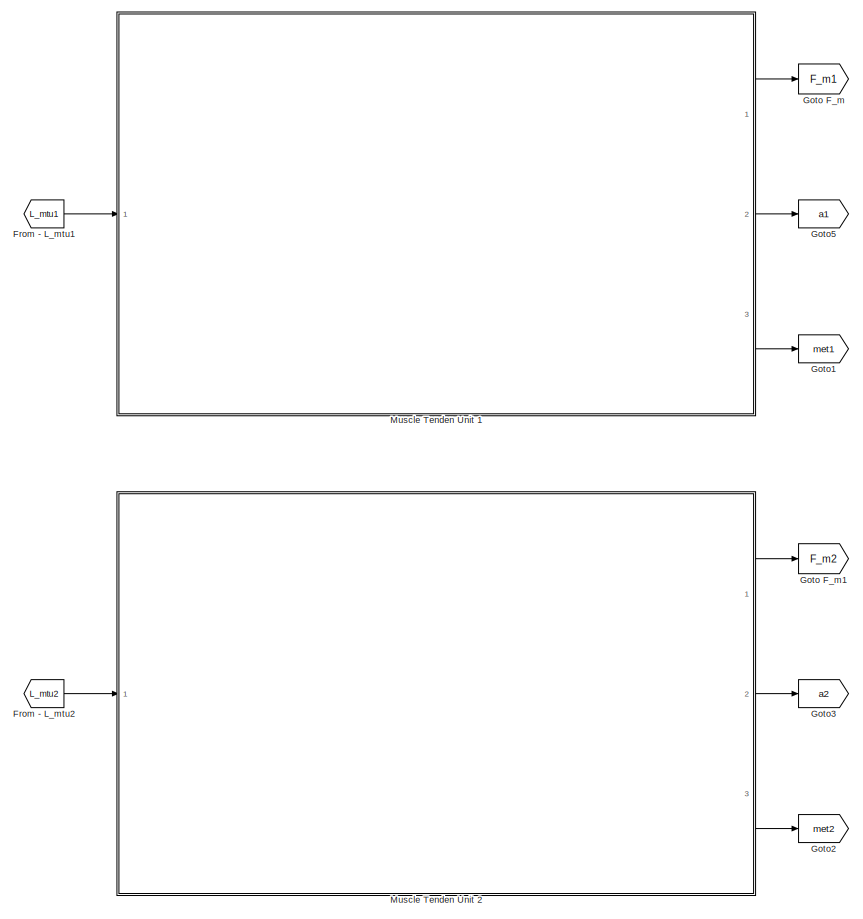
[diagram: root canvas - part 1/6, top center region]
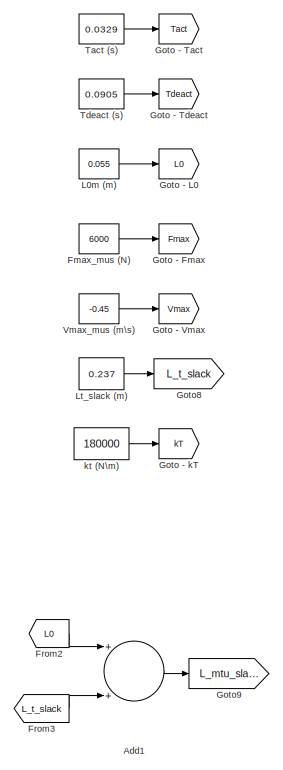
[diagram: root canvas - part 2/6, top left region]
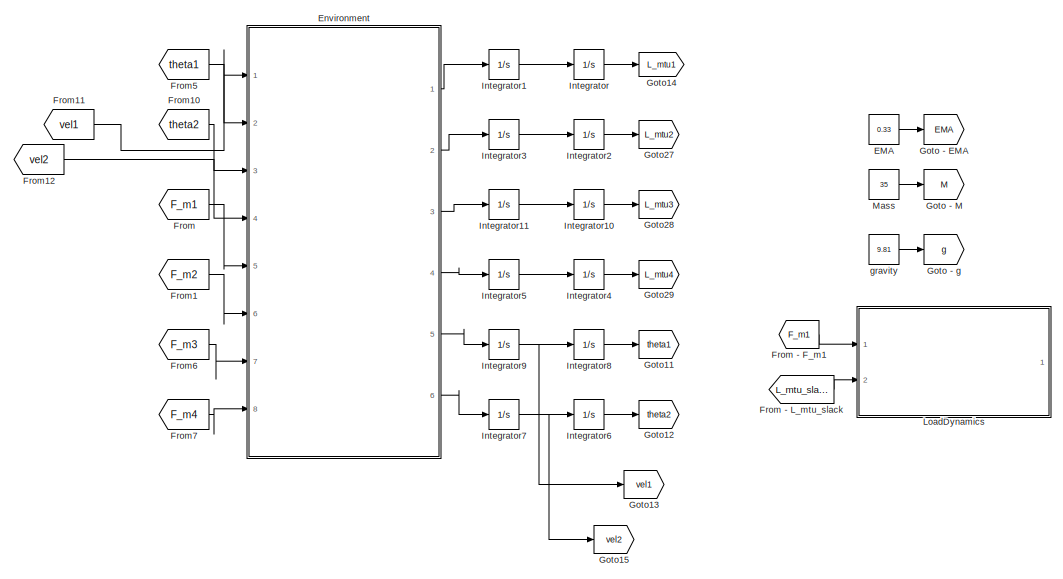
[diagram: root canvas - part 3/6, top right region]
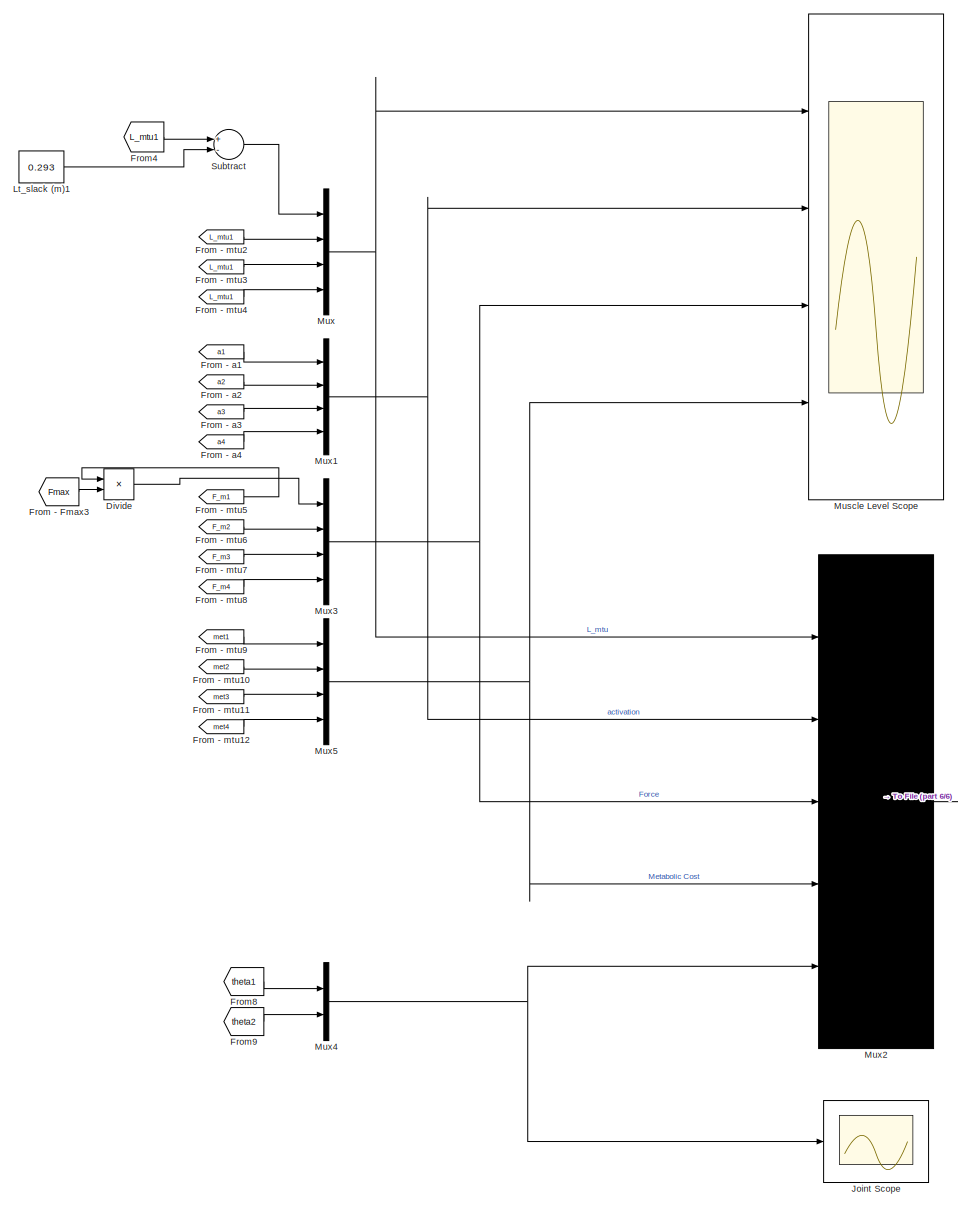
[diagram: root canvas - part 4/6, bottom right region]
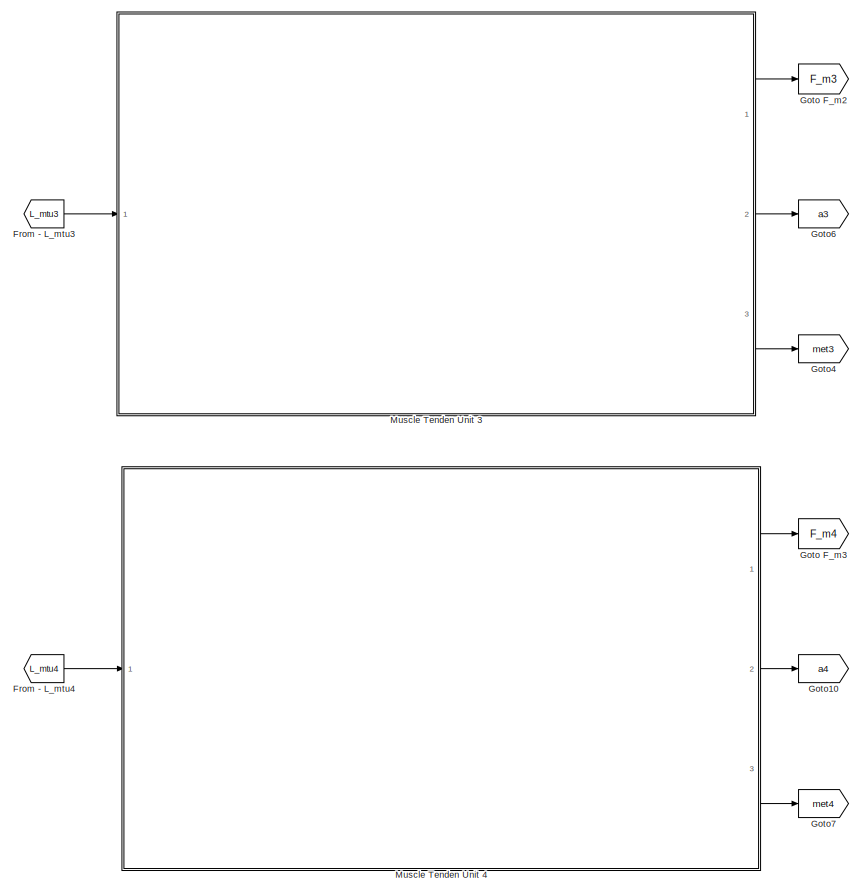
[diagram: root canvas - part 5/6, bottom center region]
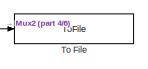
[diagram: root canvas - part 6/6, bottom right region]
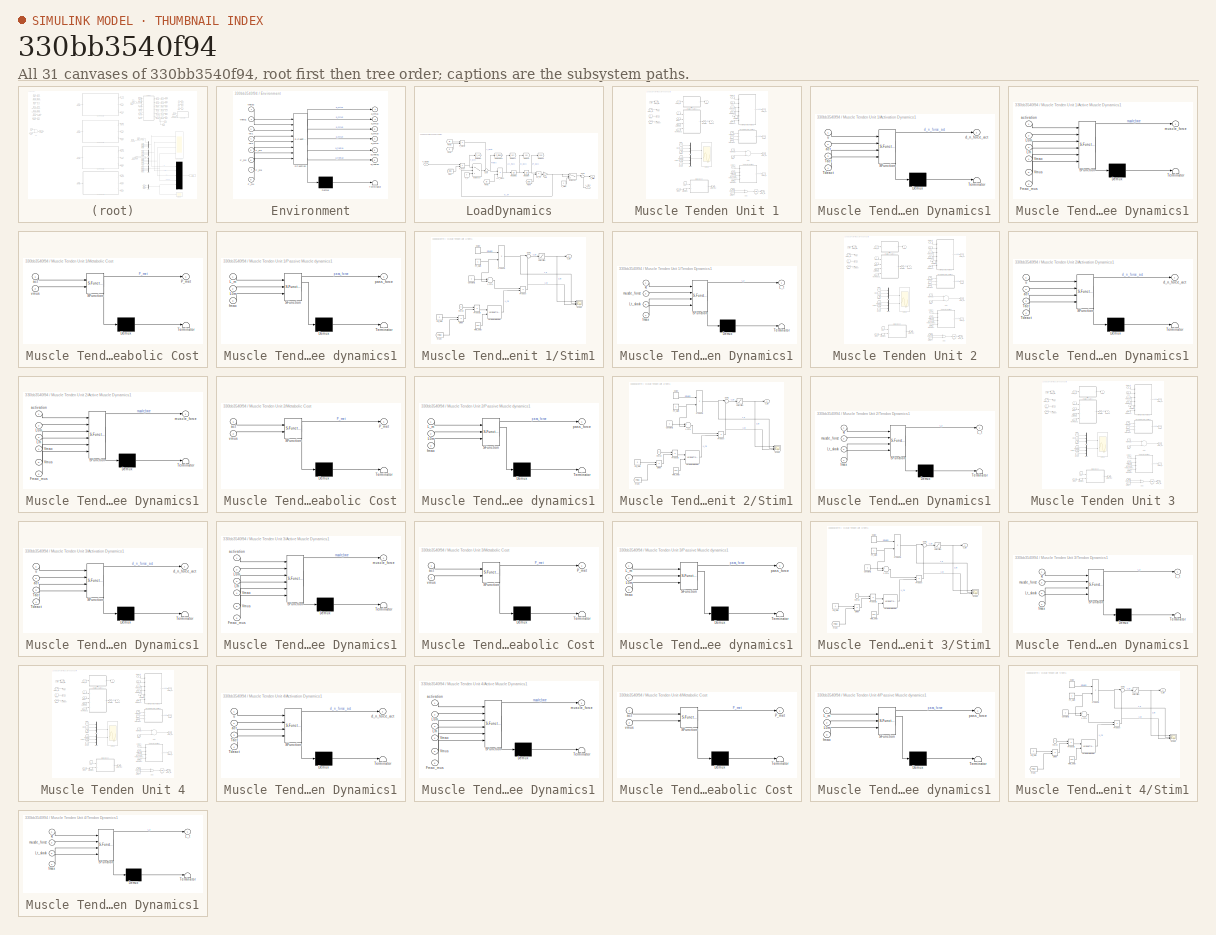
[diagram: thumbnail index - all 31 canvases of the model, root first then tree order]
MODEL slx_330bb3540f94
KIND model
CONFIG AbsTol = auto
CONFIG EnableMultiTasking = on
CONFIG FixedStep = 0.0005
CONFIG MaxStep = auto
CONFIG MinStep = auto
CONFIG RelTol = 1e-3
CONFIG SampleTimeConstraint = Unconstrained
CONFIG Solver = ode4
CONFIG SolverName = ode4
CONFIG StartTime = 0
CONFIG StopTime = 25
BLOCK [Sum] Add1
  InputSameDT = off
  OutDataTypeStr = Inherit: Inherit via internal rule
  Ports = [2, 1]
  SaturateOnIntegerOverflow = off
BLOCK [Product] Divide
  InputSameDT = off
  Inputs = */
  OutDataTypeStr = Inherit: Inherit via internal rule
  Ports = [2, 1]
  RndMeth = Floor
  SaturateOnIntegerOverflow = off
BLOCK [Constant] EMA
  Value = 0.33
BLOCK [SubSystem] Environment
  ErrorFcn = Stateflow.Translate.translate
  PermitHierarchicalResolution = ExplicitOnly
  Ports = [8, 6]
  RequestExecContextInheritance = off
  SFBlockType = MATLAB Function
  TreatAsAtomicUnit = on
BLOCK [Demux] Environment/ Demux 
  Outputs = 1
  Ports = [1, 1]
BLOCK [S-Function] Environment/ SFunction 
  EnableBusSupport = on
  FunctionName = sf_sfun
  PortCounts = [8 7]
  Ports = [8, 7]
  SFcnIsStateOwnerBlock = off
  SFunctionDeploymentMode = off
  Tag = Stateflow S-Function arm 5
BLOCK [Terminator] Environment/ Terminator 
BLOCK [Inport] Environment/F_m1
  IconDisplay = Port number
  Port = 5
BLOCK [Inport] Environment/F_m2
  IconDisplay = Port number
  Port = 6
BLOCK [Inport] Environment/F_m3
  IconDisplay = Port number
  Port = 7
BLOCK [Inport] Environment/F_m4
  IconDisplay = Port number
  Port = 8
BLOCK [Outport] Environment/a_mtu1
  IconDisplay = Port number
BLOCK [Outport] Environment/a_mtu2
  IconDisplay = Port number
  Port = 2
BLOCK [Outport] Environment/a_mtu3
  IconDisplay = Port number
  Port = 3
BLOCK [Outport] Environment/a_mtu4
  IconDisplay = Port number
  Port = 4
BLOCK [Outport] Environment/a_theta1
  IconDisplay = Port number
  Port = 5
BLOCK [Outport] Environment/a_theta2
  IconDisplay = Port number
  Port = 6
BLOCK [Inport] Environment/theta1
  IconDisplay = Port number
  Port = 2
BLOCK [Inport] Environment/theta2
  IconDisplay = Port number
BLOCK [Inport] Environment/vel1
  IconDisplay = Port number
  Port = 3
BLOCK [Inport] Environment/vel2
  IconDisplay = Port number
  Port = 4
BLOCK [Constant] Fmax_mus (N)
  Value = 6000
BLOCK [From] From
  GotoTag = F_m1
BLOCK [From] From - F_m1
  GotoTag = F_m1
BLOCK [From] From - Fmax3
  GotoTag = Fmax
  TagVisibility = global
BLOCK [From] From - L_mtu1
  GotoTag = L_mtu1
BLOCK [From] From - L_mtu2
  GotoTag = L_mtu2
BLOCK [From] From - L_mtu3
  GotoTag = L_mtu3
BLOCK [From] From - L_mtu4
  GotoTag = L_mtu4
BLOCK [From] From - L_mtu_slack
  GotoTag = L_mtu_slack
  TagVisibility = global
BLOCK [From] From - a1
  GotoTag = a1
BLOCK [From] From - a2
  GotoTag = a2
BLOCK [From] From - a3
  GotoTag = a3
BLOCK [From] From - a4
  GotoTag = a4
BLOCK [From] From - mtu10
  GotoTag = met2
BLOCK [From] From - mtu11
  GotoTag = met3
BLOCK [From] From - mtu12
  GotoTag = met4
BLOCK [From] From - mtu2
  GotoTag = L_mtu1
BLOCK [From] From - mtu3
  GotoTag = L_mtu1
BLOCK [From] From - mtu4
  GotoTag = L_mtu1
BLOCK [From] From - mtu5
  GotoTag = F_m1
BLOCK [From] From - mtu6
  GotoTag = F_m2
BLOCK [From] From - mtu7
  GotoTag = F_m3
BLOCK [From] From - mtu8
  GotoTag = F_m4
BLOCK [From] From - mtu9
  GotoTag = met1
BLOCK [From] From1
  GotoTag = F_m2
BLOCK [From] From10
  GotoTag = theta2
BLOCK [From] From11
  GotoTag = vel1
BLOCK [From] From12
  GotoTag = vel2
BLOCK [From] From2
  GotoTag = L0
  TagVisibility = global
BLOCK [From] From3
  GotoTag = L_t_slack
  TagVisibility = global
BLOCK [From] From4
  GotoTag = L_mtu1
BLOCK [From] From5
  GotoTag = theta1
BLOCK [From] From6
  GotoTag = F_m3
BLOCK [From] From7
  GotoTag = F_m4
BLOCK [From] From8
  GotoTag = theta1
BLOCK [From] From9
  GotoTag = theta2
BLOCK [Goto] Goto - EMA
  GotoTag = EMA
  TagVisibility = global
BLOCK [Goto] Goto - Fmax
  GotoTag = Fmax
  TagVisibility = global
BLOCK [Goto] Goto - L0
  GotoTag = L0
  TagVisibility = global
BLOCK [Goto] Goto - M
  GotoTag = M
  TagVisibility = global
BLOCK [Goto] Goto - Tact
  GotoTag = Tact
  TagVisibility = global
BLOCK [Goto] Goto - Tdeact
  GotoTag = Tdeact
  TagVisibility = global
BLOCK [Goto] Goto - Vmax
  GotoTag = Vmax
  TagVisibility = global
BLOCK [Goto] Goto - g
  GotoTag = g
  TagVisibility = global
BLOCK [Goto] Goto - kT
  GotoTag = kT
  TagVisibility = global
BLOCK [Goto] Goto F_m
  GotoTag = F_m1
BLOCK [Goto] Goto F_m1
  GotoTag = F_m2
BLOCK [Goto] Goto F_m2
  GotoTag = F_m3
BLOCK [Goto] Goto F_m3
  GotoTag = F_m4
BLOCK [Goto] Goto1
  GotoTag = met1
BLOCK [Goto] Goto10
  GotoTag = a4
BLOCK [Goto] Goto11
  GotoTag = theta1
BLOCK [Goto] Goto12
  GotoTag = theta2
BLOCK [Goto] Goto13
  GotoTag = vel1
BLOCK [Goto] Goto14
  GotoTag = L_mtu1
BLOCK [Goto] Goto15
  GotoTag = vel2
BLOCK [Goto] Goto2
  GotoTag = met2
BLOCK [Goto] Goto27
  GotoTag = L_mtu2
BLOCK [Goto] Goto28
  GotoTag = L_mtu3
BLOCK [Goto] Goto29
  GotoTag = L_mtu4
BLOCK [Goto] Goto3
  GotoTag = a2
BLOCK [Goto] Goto4
  GotoTag = met3
BLOCK [Goto] Goto5
  GotoTag = a1
BLOCK [Goto] Goto6
  GotoTag = a3
BLOCK [Goto] Goto7
  GotoTag = met4
BLOCK [Goto] Goto8
  GotoTag = L_t_slack
  TagVisibility = global
BLOCK [Goto] Goto9
  GotoTag = L_mtu_slack
  TagVisibility = global
BLOCK [Integrator] Integrator
  InitialCondition = 0.05
  Ports = [1, 1]
BLOCK [Integrator] Integrator1
  Ports = [1, 1]
BLOCK [Integrator] Integrator10
  Ports = [1, 1]
BLOCK [Integrator] Integrator11
  Ports = [1, 1]
BLOCK [Integrator] Integrator2
  Ports = [1, 1]
BLOCK [Integrator] Integrator3
  Ports = [1, 1]
BLOCK [Integrator] Integrator4
  Ports = [1, 1]
BLOCK [Integrator] Integrator5
  Ports = [1, 1]
BLOCK [Integrator] Integrator6
  Ports = [1, 1]
BLOCK [Integrator] Integrator7
  Ports = [1, 1]
BLOCK [Integrator] Integrator8
  Ports = [1, 1]
BLOCK [Integrator] Integrator9
  Ports = [1, 1]
BLOCK [Scope] Joint Scope
  Floating = off
  NumInputPorts = 1
  Ports = [1]
  ScopeSpecificationString = Simulink.scopes.TimeScopeBlockCfg('CurrentConfiguration', extmgr.ConfigurationSet(extmgr.Configuration('Core','General UI',true),extmgr.Configuration('Core','Source UI',true),extmgr.Configuration('Sources','WiredSimulink',true,'DataLoggingVariableName','ScopeData1'),extmgr.Configuration('Visuals','Time Domain',true,'SerializedDisplays',{struct('MinYLimReal','0.2495','MaxYLimReal','0.26572','YLabel...<+7544ch>
BLOCK [Constant] L0m (m)
  Value = 0.055
BLOCK [SubSystem] LoadDynamics
  Ports = [2, 1]
  RequestExecContextInheritance = off
BLOCK [Product] LoadDynamics/Acc_mass
  InputSameDT = off
  Inputs = */
  OutDataTypeStr = Inherit: Inherit via internal rule
  Ports = [2, 1]
  RndMeth = Floor
  SaturateOnIntegerOverflow = off
BLOCK [Constant] LoadDynamics/F_0
  Value = 0
BLOCK [Product] LoadDynamics/F_gravity
  InputSameDT = off
  OutDataTypeStr = Inherit: Inherit via internal rule
  Ports = [2, 1]
  SaturateOnIntegerOverflow = off
BLOCK [Product] LoadDynamics/F_lever
  InputSameDT = off
  OutDataTypeStr = Inherit: Inherit via internal rule
  Ports = [2, 1]
  SaturateOnIntegerOverflow = off
BLOCK [Inport] LoadDynamics/F_mt_total
  IconDisplay = Port number
BLOCK [From] LoadDynamics/From
  GotoTag = EMA
  TagVisibility = global
BLOCK [From] LoadDynamics/From1
  GotoTag = g
  TagVisibility = global
BLOCK [From] LoadDynamics/From2
  GotoTag = M
  TagVisibility = global
BLOCK [From] LoadDynamics/From3
  GotoTag = M
  TagVisibility = global
BLOCK [From] LoadDynamics/From4
  GotoTag = EMA
  TagVisibility = global
BLOCK [Gain] LoadDynamics/Gain
  Gain = -1
  OutDataTypeStr = Inherit: Inherit via internal rule
  ParamDataTypeStr = Inherit: Inherit via internal rule
  SaturateOnIntegerOverflow = off
BLOCK [Goto] LoadDynamics/Goto - Flev
  GotoTag = F_Lev
  TagVisibility = global
BLOCK [Goto] LoadDynamics/Goto - Fmass
  GotoTag = F_mass
  TagVisibility = global
BLOCK [Goto] LoadDynamics/Goto - acc
  GotoTag = acc
  TagVisibility = global
BLOCK [Goto] LoadDynamics/Goto - pos
  GotoTag = pos
  TagVisibility = global
BLOCK [Goto] LoadDynamics/Goto - vel
  GotoTag = vel
  TagVisibility = global
BLOCK [Switch] LoadDynamics/In stance?
  InputSameDT = off
  SaturateOnIntegerOverflow = off
BLOCK [Integrator] LoadDynamics/Integrator
  InitialCondition = 0.05
  Ports = [1, 1]
BLOCK [Integrator] LoadDynamics/Integrator1
  Ports = [1, 1]
BLOCK [Outport] LoadDynamics/L_mt (m)
  IconDisplay = Port number
BLOCK [Inport] LoadDynamics/L_mt_0
  IconDisplay = Port number
  Port = 2
BLOCK [Constant] LoadDynamics/L_mtu0
  Value = 0
BLOCK [Sum] LoadDynamics/Sum
  IconShape = round
  InputSameDT = off
  Inputs = -+|
  OutDataTypeStr = Inherit: Inherit via internal rule
  Ports = [2, 1]
  SaturateOnIntegerOverflow = off
BLOCK [Sum] LoadDynamics/Sum1
  IconShape = round
  InputSameDT = off
  Inputs = |++
  OutDataTypeStr = Inherit: Inherit via internal rule
  Ports = [2, 1]
  SaturateOnIntegerOverflow = off
BLOCK [Product] LoadDynamics/dL_mt
  InputSameDT = off
  OutDataTypeStr = Inherit: Inherit via internal rule
  Ports = [2, 1]
  SaturateOnIntegerOverflow = off
BLOCK [Switch] LoadDynamics/in stance? 
  InputSameDT = off
  SaturateOnIntegerOverflow = off
BLOCK [Constant] Lt_slack (m)
  Value = 0.237
BLOCK [Constant] Lt_slack (m)1
  Value = 0.293
BLOCK [Constant] Mass
  Value = 35
BLOCK [Scope] Muscle Level Scope
  Floating = off
  NumInputPorts = 4
  Ports = [4]
  ScopeSpecificationString = Simulink.scopes.TimeScopeBlockCfg('CurrentConfiguration', extmgr.ConfigurationSet(extmgr.Configuration('Core','General UI',true),extmgr.Configuration('Core','Source UI',true),extmgr.Configuration('Sources','WiredSimulink',true),extmgr.Configuration('Visuals','Time Domain',true,'SerializedDisplays',{struct('MinYLimReal','-0.00629','MaxYLimReal','0.11489','YLabelReal','','MinYLimMag','0.00000','MaxY...<+4488ch>
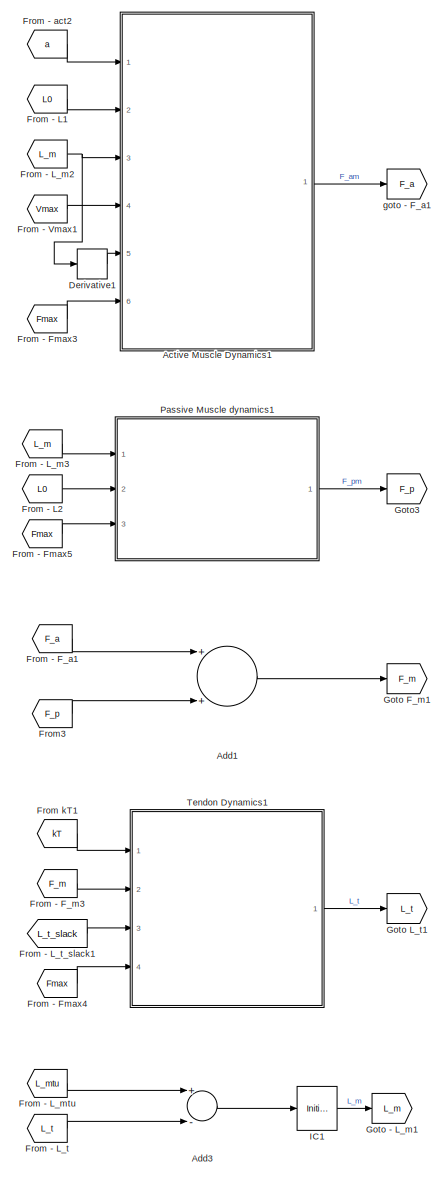
[diagram: Muscle Tenden Unit 1 - part 1/2, right side, full height]
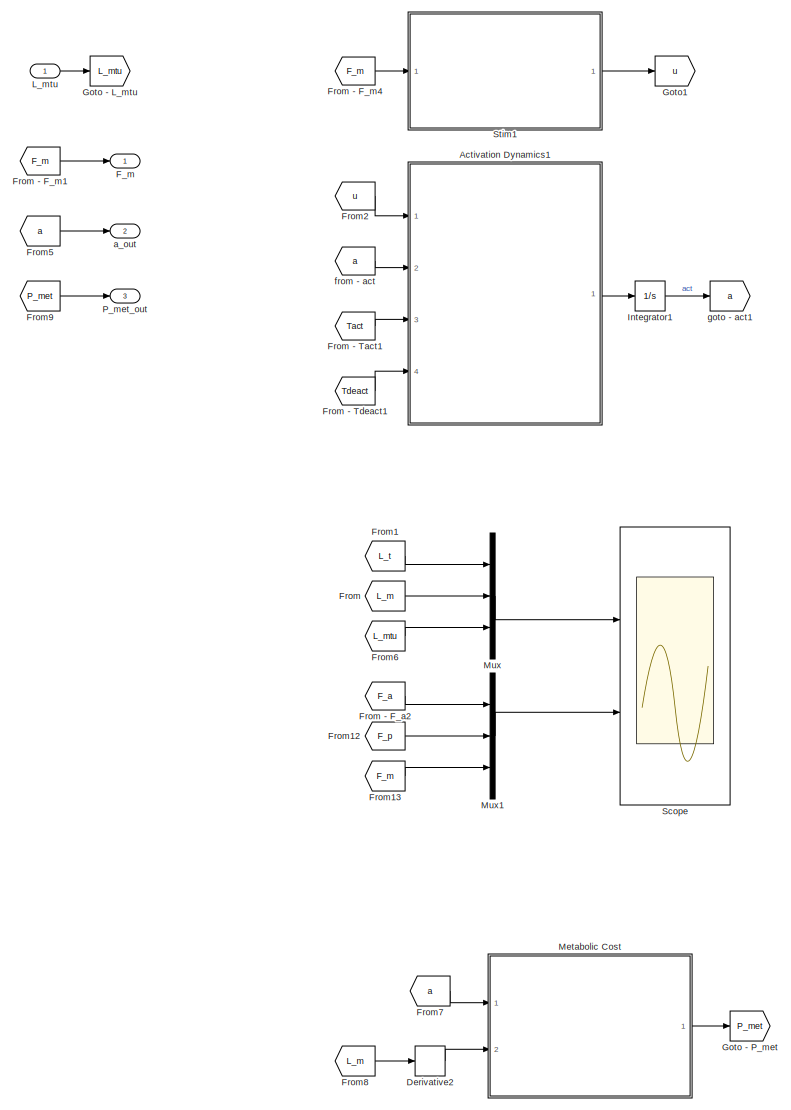
[diagram: Muscle Tenden Unit 1 - part 2/2, left side, full height]
BLOCK [SubSystem] Muscle Tenden Unit 1
  Ports = [1, 3]
  RequestExecContextInheritance = off
BLOCK [SubSystem] Muscle Tenden Unit 1/Activation Dynamics1
  ErrorFcn = Stateflow.Translate.translate
  PermitHierarchicalResolution = ExplicitOnly
  Ports = [4, 1]
  RequestExecContextInheritance = off
  SFBlockType = MATLAB Function
  TreatAsAtomicUnit = on
BLOCK [Demux] Muscle Tenden Unit 1/Activation Dynamics1/ Demux 
  Outputs = 1
  Ports = [1, 1]
BLOCK [S-Function] Muscle Tenden Unit 1/Activation Dynamics1/ SFunction 
  EnableBusSupport = on
  FunctionName = sf_sfun
  PortCounts = [4 2]
  Ports = [4, 2]
  SFcnIsStateOwnerBlock = off
  SFunctionDeploymentMode = off
  Tag = Stateflow S-Function arm 6
BLOCK [Terminator] Muscle Tenden Unit 1/Activation Dynamics1/ Terminator 
BLOCK [Inport] Muscle Tenden Unit 1/Activation Dynamics1/Tact
  IconDisplay = Port number
  Port = 3
BLOCK [Inport] Muscle Tenden Unit 1/Activation Dynamics1/Tdeact
  IconDisplay = Port number
  Port = 4
BLOCK [Inport] Muscle Tenden Unit 1/Activation Dynamics1/act
  IconDisplay = Port number
  Port = 2
BLOCK [Outport] Muscle Tenden Unit 1/Activation Dynamics1/d_n_force_act
  IconDisplay = Port number
BLOCK [Inport] Muscle Tenden Unit 1/Activation Dynamics1/u
  IconDisplay = Port number
BLOCK [SubSystem] Muscle Tenden Unit 1/Active Muscle Dynamics1
  ErrorFcn = Stateflow.Translate.translate
  PermitHierarchicalResolution = ExplicitOnly
  Ports = [6, 1]
  RequestExecContextInheritance = off
  SFBlockType = MATLAB Function
BLOCK [Demux] Muscle Tenden Unit 1/Active Muscle Dynamics1/ Demux 
  Outputs = 1
  Ports = [1, 1]
BLOCK [S-Function] Muscle Tenden Unit 1/Active Muscle Dynamics1/ SFunction 
  EnableBusSupport = on
  FunctionName = sf_sfun
  PortCounts = [6 2]
  Ports = [6, 2]
  SFcnIsStateOwnerBlock = off
  SFunctionDeploymentMode = off
  Tag = Stateflow S-Function arm 7
BLOCK [Terminator] Muscle Tenden Unit 1/Active Muscle Dynamics1/ Terminator 
BLOCK [Inport] Muscle Tenden Unit 1/Active Muscle Dynamics1/Fmax_mus
  IconDisplay = Port number
  Port = 6
BLOCK [Inport] Muscle Tenden Unit 1/Active Muscle Dynamics1/L0m
  IconDisplay = Port number
  Port = 2
BLOCK [Inport] Muscle Tenden Unit 1/Active Muscle Dynamics1/Lm
  IconDisplay = Port number
  Port = 3
BLOCK [Inport] Muscle Tenden Unit 1/Active Muscle Dynamics1/Vmax
  IconDisplay = Port number
  Port = 4
BLOCK [Inport] Muscle Tenden Unit 1/Active Muscle Dynamics1/Vmus
  IconDisplay = Port number
  Port = 5
BLOCK [Inport] Muscle Tenden Unit 1/Active Muscle Dynamics1/activation
  IconDisplay = Port number
BLOCK [Outport] Muscle Tenden Unit 1/Active Muscle Dynamics1/muscle_force
  IconDisplay = Port number
BLOCK [Sum] Muscle Tenden Unit 1/Add1
  InputSameDT = off
  OutDataTypeStr = Inherit: Inherit via internal rule
  Ports = [2, 1]
  SaturateOnIntegerOverflow = off
BLOCK [Sum] Muscle Tenden Unit 1/Add3
  InputSameDT = off
  Inputs = +-
  OutDataTypeStr = Inherit: Inherit via internal rule
  Ports = [2, 1]
  SaturateOnIntegerOverflow = off
BLOCK [Derivative] Muscle Tenden Unit 1/Derivative1
BLOCK [Derivative] Muscle Tenden Unit 1/Derivative2
BLOCK [Outport] Muscle Tenden Unit 1/F_m
  IconDisplay = Port number
BLOCK [From] Muscle Tenden Unit 1/From
  GotoTag = L_m
BLOCK [From] Muscle Tenden Unit 1/From - F_a1
  GotoTag = F_a
BLOCK [From] Muscle Tenden Unit 1/From - F_a2
  GotoTag = F_a
BLOCK [From] Muscle Tenden Unit 1/From - F_m1
  GotoTag = F_m
BLOCK [From] Muscle Tenden Unit 1/From - F_m3
  GotoTag = F_m
BLOCK [From] Muscle Tenden Unit 1/From - F_m4
  GotoTag = F_m
BLOCK [From] Muscle Tenden Unit 1/From - Fmax3
  GotoTag = Fmax
  TagVisibility = global
BLOCK [From] Muscle Tenden Unit 1/From - Fmax4
  GotoTag = Fmax
  TagVisibility = global
BLOCK [From] Muscle Tenden Unit 1/From - Fmax5
  GotoTag = Fmax
  TagVisibility = global
BLOCK [From] Muscle Tenden Unit 1/From - L1
  GotoTag = L0
  TagVisibility = global
BLOCK [From] Muscle Tenden Unit 1/From - L2
  GotoTag = L0
  TagVisibility = global
BLOCK [From] Muscle Tenden Unit 1/From - L_m2
  GotoTag = L_m
BLOCK [From] Muscle Tenden Unit 1/From - L_m3
  GotoTag = L_m
BLOCK [From] Muscle Tenden Unit 1/From - L_mtu
  GotoTag = L_mtu
BLOCK [From] Muscle Tenden Unit 1/From - L_t
  GotoTag = L_t
BLOCK [From] Muscle Tenden Unit 1/From - L_t_slack1
  GotoTag = L_t_slack
  TagVisibility = global
BLOCK [From] Muscle Tenden Unit 1/From - Tact1
  GotoTag = Tact
  TagVisibility = global
BLOCK [From] Muscle Tenden Unit 1/From - Tdeact1
  GotoTag = Tdeact
  TagVisibility = global
BLOCK [From] Muscle Tenden Unit 1/From - Vmax1
  GotoTag = Vmax
  TagVisibility = global
BLOCK [From] Muscle Tenden Unit 1/From - act2
  GotoTag = a
BLOCK [From] Muscle Tenden Unit 1/From kT1
  GotoTag = kT
  TagVisibility = global
BLOCK [From] Muscle Tenden Unit 1/From1
  GotoTag = L_t
BLOCK [From] Muscle Tenden Unit 1/From12
  GotoTag = F_p
BLOCK [From] Muscle Tenden Unit 1/From13
  GotoTag = F_m
BLOCK [From] Muscle Tenden Unit 1/From2
  GotoTag = u
BLOCK [From] Muscle Tenden Unit 1/From3
  GotoTag = F_p
BLOCK [From] Muscle Tenden Unit 1/From5
  GotoTag = a
BLOCK [From] Muscle Tenden Unit 1/From6
  GotoTag = L_mtu
BLOCK [From] Muscle Tenden Unit 1/From7
  GotoTag = a
BLOCK [From] Muscle Tenden Unit 1/From8
  GotoTag = L_m
BLOCK [From] Muscle Tenden Unit 1/From9
  GotoTag = P_met
BLOCK [Goto] Muscle Tenden Unit 1/Goto - L_m1
  GotoTag = L_m
BLOCK [Goto] Muscle Tenden Unit 1/Goto - L_mtu
  GotoTag = L_mtu
BLOCK [Goto] Muscle Tenden Unit 1/Goto - P_met
  GotoTag = P_met
BLOCK [Goto] Muscle Tenden Unit 1/Goto F_m1
  GotoTag = F_m
BLOCK [Goto] Muscle Tenden Unit 1/Goto L_t1
  GotoTag = L_t
BLOCK [Goto] Muscle Tenden Unit 1/Goto1
  GotoTag = u
BLOCK [Goto] Muscle Tenden Unit 1/Goto3
  GotoTag = F_p
BLOCK [InitialCondition] Muscle Tenden Unit 1/IC1
  Value = 0.05
BLOCK [Integrator] Muscle Tenden Unit 1/Integrator1
  Ports = [1, 1]
BLOCK [Inport] Muscle Tenden Unit 1/L_mtu 
  IconDisplay = Port number
BLOCK [SubSystem] Muscle Tenden Unit 1/Metabolic Cost
  ErrorFcn = Stateflow.Translate.translate
  PermitHierarchicalResolution = ExplicitOnly
  Ports = [2, 1]
  RequestExecContextInheritance = off
  SFBlockType = MATLAB Function
BLOCK [Demux] Muscle Tenden Unit 1/Metabolic Cost/ Demux 
  Outputs = 1
  Ports = [1, 1]
BLOCK [S-Function] Muscle Tenden Unit 1/Metabolic Cost/ SFunction 
  EnableBusSupport = on
  FunctionName = sf_sfun
  PortCounts = [2 2]
  Ports = [2, 2]
  SFcnIsStateOwnerBlock = off
  SFunctionDeploymentMode = off
  Tag = Stateflow S-Function arm 18
BLOCK [Terminator] Muscle Tenden Unit 1/Metabolic Cost/ Terminator 
BLOCK [Outport] Muscle Tenden Unit 1/Metabolic Cost/P_met
  IconDisplay = Port number
BLOCK [Inport] Muscle Tenden Unit 1/Metabolic Cost/act
  IconDisplay = Port number
BLOCK [Inport] Muscle Tenden Unit 1/Metabolic Cost/vmus
  IconDisplay = Port number
  Port = 2
BLOCK [Mux] Muscle Tenden Unit 1/Mux
  DisplayOption = bar
  Inputs = 3
  Ports = [3, 1]
BLOCK [Mux] Muscle Tenden Unit 1/Mux1
  DisplayOption = bar
  Inputs = 3
  Ports = [3, 1]
BLOCK [Outport] Muscle Tenden Unit 1/P_met_out
  IconDisplay = Port number
  Port = 3
BLOCK [SubSystem] Muscle Tenden Unit 1/Passive Muscle dynamics1
  ErrorFcn = Stateflow.Translate.translate
  PermitHierarchicalResolution = ExplicitOnly
  Ports = [3, 1]
  RequestExecContextInheritance = off
  SFBlockType = MATLAB Function
BLOCK [Demux] Muscle Tenden Unit 1/Passive Muscle dynamics1/ Demux 
  Outputs = 1
  Ports = [1, 1]
BLOCK [S-Function] Muscle Tenden Unit 1/Passive Muscle dynamics1/ SFunction 
  EnableBusSupport = on
  FunctionName = sf_sfun
  PortCounts = [3 2]
  Ports = [3, 2]
  SFcnIsStateOwnerBlock = off
  SFunctionDeploymentMode = off
  Tag = Stateflow S-Function arm 8
BLOCK [Terminator] Muscle Tenden Unit 1/Passive Muscle dynamics1/ Terminator 
BLOCK [Inport] Muscle Tenden Unit 1/Passive Muscle dynamics1/L0m
  IconDisplay = Port number
  Port = 2
BLOCK [Inport] Muscle Tenden Unit 1/Passive Muscle dynamics1/L_m
  IconDisplay = Port number
BLOCK [Inport] Muscle Tenden Unit 1/Passive Muscle dynamics1/fmax
  IconDisplay = Port number
  Port = 3
BLOCK [Outport] Muscle Tenden Unit 1/Passive Muscle dynamics1/pass_force
  IconDisplay = Port number
BLOCK [Scope] Muscle Tenden Unit 1/Scope
  Floating = off
  NumInputPorts = 2
  Ports = [2]
  ScopeSpecificationString = Simulink.scopes.TimeScopeBlockCfg('CurrentConfiguration', extmgr.ConfigurationSet(extmgr.Configuration('Core','General UI',true),extmgr.Configuration('Core','Source UI',true),extmgr.Configuration('Sources','WiredSimulink',true,'DataLoggingVariableName','ScopeData1'),extmgr.Configuration('Visuals','Time Domain',true,'SerializedDisplays',{struct('MinYLimReal','0.01237','MaxYLimReal','0.36108','YLabe...<+1976ch>  <repeated x4 — deduplicated; at blocks: Scope>
BLOCK [SubSystem] Muscle Tenden Unit 1/Stim1
  Ports = [1, 1]
  RequestExecContextInheritance = off
BLOCK [Sum] Muscle Tenden Unit 1/Stim1/1 - FF%
  InputSameDT = off
  Inputs = +-
  OutDataTypeStr = Inherit: Inherit via internal rule
  Ports = [2, 1]
  SaturateOnIntegerOverflow = off
BLOCK [Constant] Muscle Tenden Unit 1/Stim1/Constant1
BLOCK [Product] Muscle Tenden Unit 1/Stim1/Divide
  InputSameDT = off
  Inputs = */
  OutDataTypeStr = Inherit: Inherit via internal rule
  Ports = [2, 1]
  RndMeth = Floor
  SaturateOnIntegerOverflow = off
BLOCK [Constant] Muscle Tenden Unit 1/Stim1/FB_Gain
  Value = 0
BLOCK [Constant] Muscle Tenden Unit 1/Stim1/FF_Gain
BLOCK [Inport] Muscle Tenden Unit 1/Stim1/Force
  IconDisplay = Port number
BLOCK [From] Muscle Tenden Unit 1/Stim1/From
  GotoTag = Fmax
  TagVisibility = global
BLOCK [Product] Muscle Tenden Unit 1/Stim1/Product
  InputSameDT = off
  OutDataTypeStr = Inherit: Inherit via internal rule
  Ports = [2, 1]
  RndMeth = Floor
  SaturateOnIntegerOverflow = off
BLOCK [Product] Muscle Tenden Unit 1/Stim1/Product2
  InputSameDT = off
  OutDataTypeStr = Inherit: Inherit via internal rule
  Ports = [2, 1]
  RndMeth = Floor
  SaturateOnIntegerOverflow = off
BLOCK [Product] Muscle Tenden Unit 1/Stim1/Product3
  InputSameDT = off
  OutDataTypeStr = Inherit: Inherit via internal rule
  Ports = [2, 1]
  RndMeth = Floor
  SaturateOnIntegerOverflow = off
BLOCK [Saturate] Muscle Tenden Unit 1/Stim1/Saturation
  InputPortMap = u0
  LowerLimit = 0
  Ports = [1, 1]
  UpperLimit = 1
BLOCK [Scope] Muscle Tenden Unit 1/Stim1/Scope
  Floating = off
  NumInputPorts = 3
  Ports = [3]
  ScopeSpecificationString = Simulink.scopes.TimeScopeBlockCfg('CurrentConfiguration', extmgr.ConfigurationSet(extmgr.Configuration('Core','General UI',true),extmgr.Configuration('Core','Source UI',true),extmgr.Configuration('Sources','WiredSimulink',true,'DataLoggingVariableName','ScopeData1'),extmgr.Configuration('Visuals','Time Domain',true,'SerializedDisplays',{struct('MinYLimReal','-0.125','MaxYLimReal','1.125','YLabelRe...<+2738ch>  <repeated x4 — deduplicated; at blocks: Scope>
BLOCK [Sum] Muscle Tenden Unit 1/Stim1/Sum1
  IconShape = round
  InputSameDT = off
  Inputs = |++
  OutDataTypeStr = Inherit: Inherit via internal rule
  Ports = [2, 1]
  SaturateOnIntegerOverflow = off
BLOCK [Constant] Muscle Tenden Unit 1/Stim1/Time_delay
  Value = 0.02
BLOCK [VariableTransportDelay] Muscle Tenden Unit 1/Stim1/Variable Time Delay
  MaximumDelay = 10
  MaximumPoints = 40960
  Ports = [2, 1]
BLOCK [DiscretePulseGenerator] Muscle Tenden Unit 1/Stim1/pulse
  Period = 0.4
  PhaseDelay = 0.1
  Ports = [0, 1]
  PulseType = Time based
  PulseWidth = 10
BLOCK [Outport] Muscle Tenden Unit 1/Stim1/u_tot
  IconDisplay = Port number
BLOCK [SubSystem] Muscle Tenden Unit 1/Tendon Dynamics1
  ErrorFcn = Stateflow.Translate.translate
  PermitHierarchicalResolution = ExplicitOnly
  Ports = [4, 1]
  RequestExecContextInheritance = off
  SFBlockType = MATLAB Function
BLOCK [Demux] Muscle Tenden Unit 1/Tendon Dynamics1/ Demux 
  Outputs = 1
  Ports = [1, 1]
BLOCK [S-Function] Muscle Tenden Unit 1/Tendon Dynamics1/ SFunction 
  EnableBusSupport = on
  FunctionName = sf_sfun
  PortCounts = [4 2]
  Ports = [4, 2]
  SFcnIsStateOwnerBlock = off
  SFunctionDeploymentMode = off
  Tag = Stateflow S-Function arm 9
BLOCK [Terminator] Muscle Tenden Unit 1/Tendon Dynamics1/ Terminator 
BLOCK [Outport] Muscle Tenden Unit 1/Tendon Dynamics1/L_t
  IconDisplay = Port number
BLOCK [Inport] Muscle Tenden Unit 1/Tendon Dynamics1/Lt_slack
  IconDisplay = Port number
  Port = 3
BLOCK [Inport] Muscle Tenden Unit 1/Tendon Dynamics1/fmax
  IconDisplay = Port number
  Port = 4
BLOCK [Inport] Muscle Tenden Unit 1/Tendon Dynamics1/kt
  IconDisplay = Port number
BLOCK [Inport] Muscle Tenden Unit 1/Tendon Dynamics1/muscle_force
  IconDisplay = Port number
  Port = 2
BLOCK [Outport] Muscle Tenden Unit 1/a_out
  IconDisplay = Port number
  Port = 2
BLOCK [From] Muscle Tenden Unit 1/from - act
  GotoTag = a
BLOCK [Goto] Muscle Tenden Unit 1/goto - F_a1
  GotoTag = F_a
BLOCK [Goto] Muscle Tenden Unit 1/goto - act1
  GotoTag = a
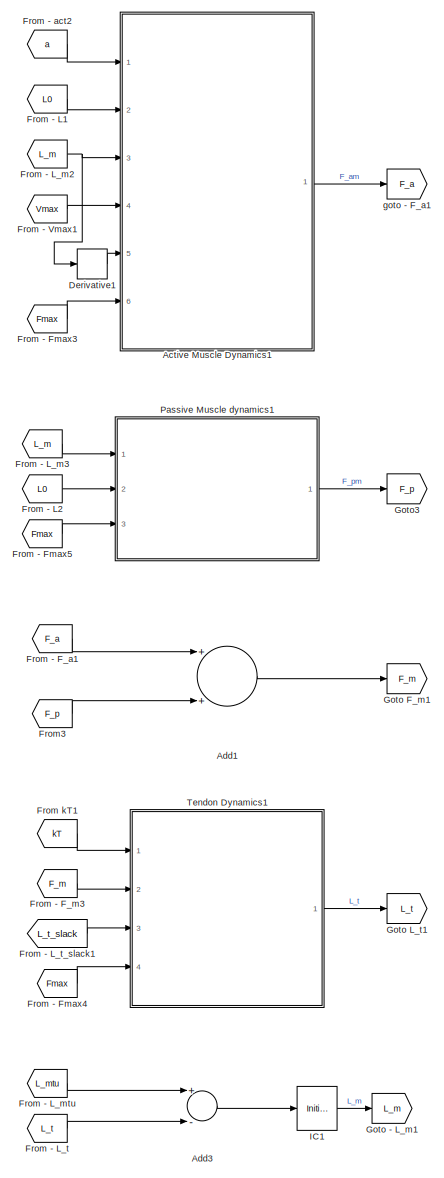
[diagram: Muscle Tenden Unit 2 - part 1/2, right side, full height]
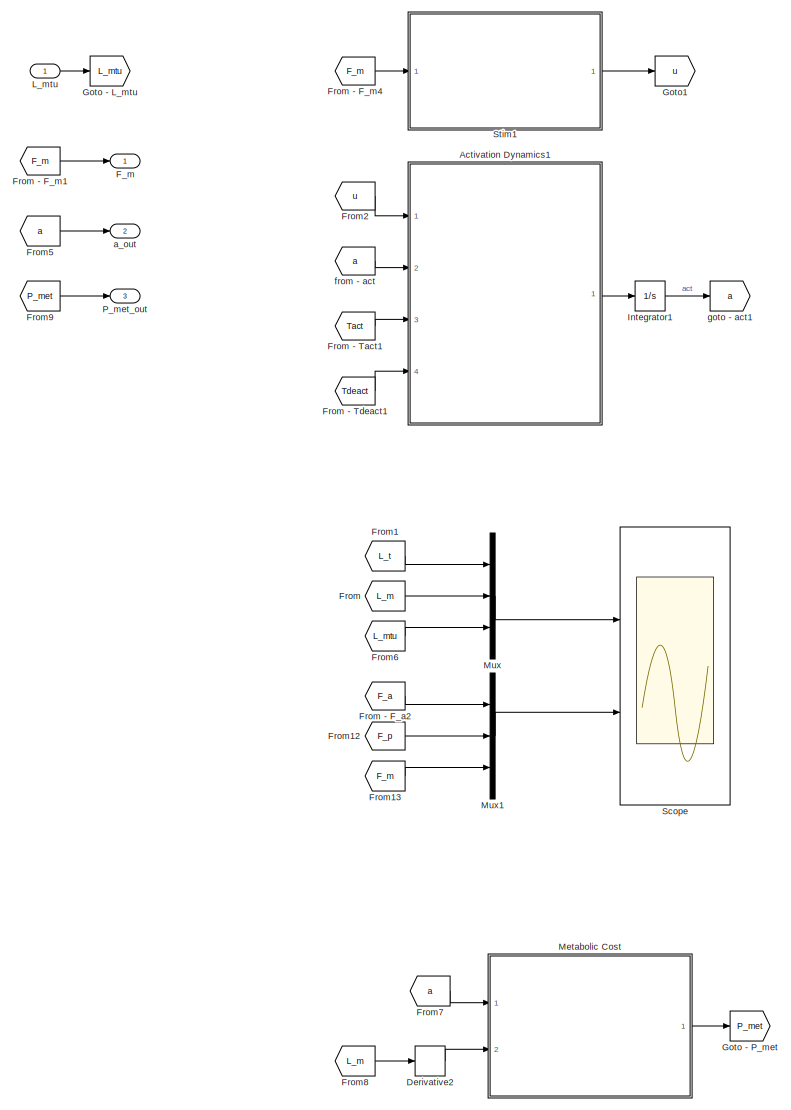
[diagram: Muscle Tenden Unit 2 - part 2/2, left side, full height]
BLOCK [SubSystem] Muscle Tenden Unit 2
  Ports = [1, 3]
  RequestExecContextInheritance = off
BLOCK [SubSystem] Muscle Tenden Unit 2/Activation Dynamics1
  ErrorFcn = Stateflow.Translate.translate
  PermitHierarchicalResolution = ExplicitOnly
  Ports = [4, 1]
  RequestExecContextInheritance = off
  SFBlockType = MATLAB Function
  TreatAsAtomicUnit = on
BLOCK [Demux] Muscle Tenden Unit 2/Activation Dynamics1/ Demux 
  Outputs = 1
  Ports = [1, 1]
BLOCK [S-Function] Muscle Tenden Unit 2/Activation Dynamics1/ SFunction 
  EnableBusSupport = on
  FunctionName = sf_sfun
  PortCounts = [4 2]
  Ports = [4, 2]
  SFcnIsStateOwnerBlock = off
  SFunctionDeploymentMode = off
  Tag = Stateflow S-Function arm 22
BLOCK [Terminator] Muscle Tenden Unit 2/Activation Dynamics1/ Terminator 
BLOCK [Inport] Muscle Tenden Unit 2/Activation Dynamics1/Tact
  IconDisplay = Port number
  Port = 3
BLOCK [Inport] Muscle Tenden Unit 2/Activation Dynamics1/Tdeact
  IconDisplay = Port number
  Port = 4
BLOCK [Inport] Muscle Tenden Unit 2/Activation Dynamics1/act
  IconDisplay = Port number
  Port = 2
BLOCK [Outport] Muscle Tenden Unit 2/Activation Dynamics1/d_n_force_act
  IconDisplay = Port number
BLOCK [Inport] Muscle Tenden Unit 2/Activation Dynamics1/u
  IconDisplay = Port number
BLOCK [SubSystem] Muscle Tenden Unit 2/Active Muscle Dynamics1
  ErrorFcn = Stateflow.Translate.translate
  PermitHierarchicalResolution = ExplicitOnly
  Ports = [6, 1]
  RequestExecContextInheritance = off
  SFBlockType = MATLAB Function
BLOCK [Demux] Muscle Tenden Unit 2/Active Muscle Dynamics1/ Demux 
  Outputs = 1
  Ports = [1, 1]
BLOCK [S-Function] Muscle Tenden Unit 2/Active Muscle Dynamics1/ SFunction 
  EnableBusSupport = on
  FunctionName = sf_sfun
  PortCounts = [6 2]
  Ports = [6, 2]
  SFcnIsStateOwnerBlock = off
  SFunctionDeploymentMode = off
  Tag = Stateflow S-Function arm 23
BLOCK [Terminator] Muscle Tenden Unit 2/Active Muscle Dynamics1/ Terminator 
BLOCK [Inport] Muscle Tenden Unit 2/Active Muscle Dynamics1/Fmax_mus
  IconDisplay = Port number
  Port = 6
BLOCK [Inport] Muscle Tenden Unit 2/Active Muscle Dynamics1/L0m
  IconDisplay = Port number
  Port = 2
BLOCK [Inport] Muscle Tenden Unit 2/Active Muscle Dynamics1/Lm
  IconDisplay = Port number
  Port = 3
BLOCK [Inport] Muscle Tenden Unit 2/Active Muscle Dynamics1/Vmax
  IconDisplay = Port number
  Port = 4
BLOCK [Inport] Muscle Tenden Unit 2/Active Muscle Dynamics1/Vmus
  IconDisplay = Port number
  Port = 5
BLOCK [Inport] Muscle Tenden Unit 2/Active Muscle Dynamics1/activation
  IconDisplay = Port number
BLOCK [Outport] Muscle Tenden Unit 2/Active Muscle Dynamics1/muscle_force
  IconDisplay = Port number
BLOCK [Sum] Muscle Tenden Unit 2/Add1
  InputSameDT = off
  OutDataTypeStr = Inherit: Inherit via internal rule
  Ports = [2, 1]
  SaturateOnIntegerOverflow = off
BLOCK [Sum] Muscle Tenden Unit 2/Add3
  InputSameDT = off
  Inputs = +-
  OutDataTypeStr = Inherit: Inherit via internal rule
  Ports = [2, 1]
  SaturateOnIntegerOverflow = off
BLOCK [Derivative] Muscle Tenden Unit 2/Derivative1
BLOCK [Derivative] Muscle Tenden Unit 2/Derivative2
BLOCK [Outport] Muscle Tenden Unit 2/F_m
  IconDisplay = Port number
BLOCK [From] Muscle Tenden Unit 2/From
  GotoTag = L_m
BLOCK [From] Muscle Tenden Unit 2/From - F_a1
  GotoTag = F_a
BLOCK [From] Muscle Tenden Unit 2/From - F_a2
  GotoTag = F_a
BLOCK [From] Muscle Tenden Unit 2/From - F_m1
  GotoTag = F_m
BLOCK [From] Muscle Tenden Unit 2/From - F_m3
  GotoTag = F_m
BLOCK [From] Muscle Tenden Unit 2/From - F_m4
  GotoTag = F_m
BLOCK [From] Muscle Tenden Unit 2/From - Fmax3
  GotoTag = Fmax
  TagVisibility = global
BLOCK [From] Muscle Tenden Unit 2/From - Fmax4
  GotoTag = Fmax
  TagVisibility = global
BLOCK [From] Muscle Tenden Unit 2/From - Fmax5
  GotoTag = Fmax
  TagVisibility = global
BLOCK [From] Muscle Tenden Unit 2/From - L1
  GotoTag = L0
  TagVisibility = global
BLOCK [From] Muscle Tenden Unit 2/From - L2
  GotoTag = L0
  TagVisibility = global
BLOCK [From] Muscle Tenden Unit 2/From - L_m2
  GotoTag = L_m
BLOCK [From] Muscle Tenden Unit 2/From - L_m3
  GotoTag = L_m
BLOCK [From] Muscle Tenden Unit 2/From - L_mtu
  GotoTag = L_mtu
BLOCK [From] Muscle Tenden Unit 2/From - L_t
  GotoTag = L_t
BLOCK [From] Muscle Tenden Unit 2/From - L_t_slack1
  GotoTag = L_t_slack
  TagVisibility = global
BLOCK [From] Muscle Tenden Unit 2/From - Tact1
  GotoTag = Tact
  TagVisibility = global
BLOCK [From] Muscle Tenden Unit 2/From - Tdeact1
  GotoTag = Tdeact
  TagVisibility = global
BLOCK [From] Muscle Tenden Unit 2/From - Vmax1
  GotoTag = Vmax
  TagVisibility = global
BLOCK [From] Muscle Tenden Unit 2/From - act2
  GotoTag = a
BLOCK [From] Muscle Tenden Unit 2/From kT1
  GotoTag = kT
  TagVisibility = global
BLOCK [From] Muscle Tenden Unit 2/From1
  GotoTag = L_t
BLOCK [From] Muscle Tenden Unit 2/From12
  GotoTag = F_p
BLOCK [From] Muscle Tenden Unit 2/From13
  GotoTag = F_m
BLOCK [From] Muscle Tenden Unit 2/From2
  GotoTag = u
BLOCK [From] Muscle Tenden Unit 2/From3
  GotoTag = F_p
BLOCK [From] Muscle Tenden Unit 2/From5
  GotoTag = a
BLOCK [From] Muscle Tenden Unit 2/From6
  GotoTag = L_mtu
BLOCK [From] Muscle Tenden Unit 2/From7
  GotoTag = a
BLOCK [From] Muscle Tenden Unit 2/From8
  GotoTag = L_m
BLOCK [From] Muscle Tenden Unit 2/From9
  GotoTag = P_met
BLOCK [Goto] Muscle Tenden Unit 2/Goto - L_m1
  GotoTag = L_m
BLOCK [Goto] Muscle Tenden Unit 2/Goto - L_mtu
  GotoTag = L_mtu
BLOCK [Goto] Muscle Tenden Unit 2/Goto - P_met
  GotoTag = P_met
BLOCK [Goto] Muscle Tenden Unit 2/Goto F_m1
  GotoTag = F_m
BLOCK [Goto] Muscle Tenden Unit 2/Goto L_t1
  GotoTag = L_t
BLOCK [Goto] Muscle Tenden Unit 2/Goto1
  GotoTag = u
BLOCK [Goto] Muscle Tenden Unit 2/Goto3
  GotoTag = F_p
BLOCK [InitialCondition] Muscle Tenden Unit 2/IC1
  Value = 0.05
BLOCK [Integrator] Muscle Tenden Unit 2/Integrator1
  Ports = [1, 1]
BLOCK [Inport] Muscle Tenden Unit 2/L_mtu 
  IconDisplay = Port number
BLOCK [SubSystem] Muscle Tenden Unit 2/Metabolic Cost
  ErrorFcn = Stateflow.Translate.translate
  PermitHierarchicalResolution = ExplicitOnly
  Ports = [2, 1]
  RequestExecContextInheritance = off
  SFBlockType = MATLAB Function
BLOCK [Demux] Muscle Tenden Unit 2/Metabolic Cost/ Demux 
  Outputs = 1
  Ports = [1, 1]
BLOCK [S-Function] Muscle Tenden Unit 2/Metabolic Cost/ SFunction 
  EnableBusSupport = on
  FunctionName = sf_sfun
  PortCounts = [2 2]
  Ports = [2, 2]
  SFcnIsStateOwnerBlock = off
  SFunctionDeploymentMode = off
  Tag = Stateflow S-Function arm 24
BLOCK [Terminator] Muscle Tenden Unit 2/Metabolic Cost/ Terminator 
BLOCK [Outport] Muscle Tenden Unit 2/Metabolic Cost/P_met
  IconDisplay = Port number
BLOCK [Inport] Muscle Tenden Unit 2/Metabolic Cost/act
  IconDisplay = Port number
BLOCK [Inport] Muscle Tenden Unit 2/Metabolic Cost/vmus
  IconDisplay = Port number
  Port = 2
BLOCK [Mux] Muscle Tenden Unit 2/Mux
  DisplayOption = bar
  Inputs = 3
  Ports = [3, 1]
BLOCK [Mux] Muscle Tenden Unit 2/Mux1
  DisplayOption = bar
  Inputs = 3
  Ports = [3, 1]
BLOCK [Outport] Muscle Tenden Unit 2/P_met_out
  IconDisplay = Port number
  Port = 3
BLOCK [SubSystem] Muscle Tenden Unit 2/Passive Muscle dynamics1
  ErrorFcn = Stateflow.Translate.translate
  PermitHierarchicalResolution = ExplicitOnly
  Ports = [3, 1]
  RequestExecContextInheritance = off
  SFBlockType = MATLAB Function
BLOCK [Demux] Muscle Tenden Unit 2/Passive Muscle dynamics1/ Demux 
  Outputs = 1
  Ports = [1, 1]
BLOCK [S-Function] Muscle Tenden Unit 2/Passive Muscle dynamics1/ SFunction 
  EnableBusSupport = on
  FunctionName = sf_sfun
  PortCounts = [3 2]
  Ports = [3, 2]
  SFcnIsStateOwnerBlock = off
  SFunctionDeploymentMode = off
  Tag = Stateflow S-Function arm 25
BLOCK [Terminator] Muscle Tenden Unit 2/Passive Muscle dynamics1/ Terminator 
BLOCK [Inport] Muscle Tenden Unit 2/Passive Muscle dynamics1/L0m
  IconDisplay = Port number
  Port = 2
BLOCK [Inport] Muscle Tenden Unit 2/Passive Muscle dynamics1/L_m
  IconDisplay = Port number
BLOCK [Inport] Muscle Tenden Unit 2/Passive Muscle dynamics1/fmax
  IconDisplay = Port number
  Port = 3
BLOCK [Outport] Muscle Tenden Unit 2/Passive Muscle dynamics1/pass_force
  IconDisplay = Port number
BLOCK [Scope] Muscle Tenden Unit 2/Scope
  Floating = off
  NumInputPorts = 2
  Ports = [2]
BLOCK [SubSystem] Muscle Tenden Unit 2/Stim1
  Ports = [1, 1]
  RequestExecContextInheritance = off
BLOCK [Sum] Muscle Tenden Unit 2/Stim1/1 - FF%
  InputSameDT = off
  Inputs = +-
  OutDataTypeStr = Inherit: Inherit via internal rule
  Ports = [2, 1]
  SaturateOnIntegerOverflow = off
BLOCK [Constant] Muscle Tenden Unit 2/Stim1/Constant1
BLOCK [Product] Muscle Tenden Unit 2/Stim1/Divide
  InputSameDT = off
  Inputs = */
  OutDataTypeStr = Inherit: Inherit via internal rule
  Ports = [2, 1]
  RndMeth = Floor
  SaturateOnIntegerOverflow = off
BLOCK [Constant] Muscle Tenden Unit 2/Stim1/FB_Gain
  Value = 0
BLOCK [Constant] Muscle Tenden Unit 2/Stim1/FF_Gain
BLOCK [Inport] Muscle Tenden Unit 2/Stim1/Force
  IconDisplay = Port number
BLOCK [From] Muscle Tenden Unit 2/Stim1/From
  GotoTag = Fmax
  TagVisibility = global
BLOCK [Product] Muscle Tenden Unit 2/Stim1/Product
  InputSameDT = off
  OutDataTypeStr = Inherit: Inherit via internal rule
  Ports = [2, 1]
  RndMeth = Floor
  SaturateOnIntegerOverflow = off
BLOCK [Product] Muscle Tenden Unit 2/Stim1/Product2
  InputSameDT = off
  OutDataTypeStr = Inherit: Inherit via internal rule
  Ports = [2, 1]
  RndMeth = Floor
  SaturateOnIntegerOverflow = off
BLOCK [Product] Muscle Tenden Unit 2/Stim1/Product3
  InputSameDT = off
  OutDataTypeStr = Inherit: Inherit via internal rule
  Ports = [2, 1]
  RndMeth = Floor
  SaturateOnIntegerOverflow = off
BLOCK [Saturate] Muscle Tenden Unit 2/Stim1/Saturation
  InputPortMap = u0
  LowerLimit = 0
  Ports = [1, 1]
  UpperLimit = 1
BLOCK [Scope] Muscle Tenden Unit 2/Stim1/Scope
  Floating = off
  NumInputPorts = 3
  Ports = [3]
BLOCK [Sum] Muscle Tenden Unit 2/Stim1/Sum1
  IconShape = round
  InputSameDT = off
  Inputs = |++
  OutDataTypeStr = Inherit: Inherit via internal rule
  Ports = [2, 1]
  SaturateOnIntegerOverflow = off
BLOCK [Constant] Muscle Tenden Unit 2/Stim1/Time_delay
  Value = 0.02
BLOCK [VariableTransportDelay] Muscle Tenden Unit 2/Stim1/Variable Time Delay
  MaximumDelay = 10
  MaximumPoints = 40960
  Ports = [2, 1]
BLOCK [DiscretePulseGenerator] Muscle Tenden Unit 2/Stim1/pulse
  Period = 0.4
  PhaseDelay = 0.1
  Ports = [0, 1]
  PulseType = Time based
  PulseWidth = 10
BLOCK [Outport] Muscle Tenden Unit 2/Stim1/u_tot
  IconDisplay = Port number
BLOCK [SubSystem] Muscle Tenden Unit 2/Tendon Dynamics1
  ErrorFcn = Stateflow.Translate.translate
  PermitHierarchicalResolution = ExplicitOnly
  Ports = [4, 1]
  RequestExecContextInheritance = off
  SFBlockType = MATLAB Function
BLOCK [Demux] Muscle Tenden Unit 2/Tendon Dynamics1/ Demux 
  Outputs = 1
  Ports = [1, 1]
BLOCK [S-Function] Muscle Tenden Unit 2/Tendon Dynamics1/ SFunction 
  EnableBusSupport = on
  FunctionName = sf_sfun
  PortCounts = [4 2]
  Ports = [4, 2]
  SFcnIsStateOwnerBlock = off
  SFunctionDeploymentMode = off
  Tag = Stateflow S-Function arm 26
BLOCK [Terminator] Muscle Tenden Unit 2/Tendon Dynamics1/ Terminator 
BLOCK [Outport] Muscle Tenden Unit 2/Tendon Dynamics1/L_t
  IconDisplay = Port number
BLOCK [Inport] Muscle Tenden Unit 2/Tendon Dynamics1/Lt_slack
  IconDisplay = Port number
  Port = 3
BLOCK [Inport] Muscle Tenden Unit 2/Tendon Dynamics1/fmax
  IconDisplay = Port number
  Port = 4
BLOCK [Inport] Muscle Tenden Unit 2/Tendon Dynamics1/kt
  IconDisplay = Port number
BLOCK [Inport] Muscle Tenden Unit 2/Tendon Dynamics1/muscle_force
  IconDisplay = Port number
  Port = 2
BLOCK [Outport] Muscle Tenden Unit 2/a_out
  IconDisplay = Port number
  Port = 2
BLOCK [From] Muscle Tenden Unit 2/from - act
  GotoTag = a
BLOCK [Goto] Muscle Tenden Unit 2/goto - F_a1
  GotoTag = F_a
BLOCK [Goto] Muscle Tenden Unit 2/goto - act1
  GotoTag = a
BLOCK [SubSystem] Muscle Tenden Unit 3
  Ports = [1, 3]
  RequestExecContextInheritance = off
BLOCK [SubSystem] Muscle Tenden Unit 3/Activation Dynamics1
  ErrorFcn = Stateflow.Translate.translate
  PermitHierarchicalResolution = ExplicitOnly
  Ports = [4, 1]
  RequestExecContextInheritance = off
  SFBlockType = MATLAB Function
  TreatAsAtomicUnit = on
BLOCK [Demux] Muscle Tenden Unit 3/Activation Dynamics1/ Demux 
  Outputs = 1
  Ports = [1, 1]
BLOCK [S-Function] Muscle Tenden Unit 3/Activation Dynamics1/ SFunction 
  EnableBusSupport = on
  FunctionName = sf_sfun
  PortCounts = [4 2]
  Ports = [4, 2]
  SFcnIsStateOwnerBlock = off
  SFunctionDeploymentMode = off
  Tag = Stateflow S-Function arm 1
BLOCK [Terminator] Muscle Tenden Unit 3/Activation Dynamics1/ Terminator 
BLOCK [Inport] Muscle Tenden Unit 3/Activation Dynamics1/Tact
  IconDisplay = Port number
  Port = 3
BLOCK [Inport] Muscle Tenden Unit 3/Activation Dynamics1/Tdeact
  IconDisplay = Port number
  Port = 4
BLOCK [Inport] Muscle Tenden Unit 3/Activation Dynamics1/act
  IconDisplay = Port number
  Port = 2
BLOCK [Outport] Muscle Tenden Unit 3/Activation Dynamics1/d_n_force_act
  IconDisplay = Port number
BLOCK [Inport] Muscle Tenden Unit 3/Activation Dynamics1/u
  IconDisplay = Port number
BLOCK [SubSystem] Muscle Tenden Unit 3/Active Muscle Dynamics1
  ErrorFcn = Stateflow.Translate.translate
  PermitHierarchicalResolution = ExplicitOnly
  Ports = [6, 1]
  RequestExecContextInheritance = off
  SFBlockType = MATLAB Function
BLOCK [Demux] Muscle Tenden Unit 3/Active Muscle Dynamics1/ Demux 
  Outputs = 1
  Ports = [1, 1]
BLOCK [S-Function] Muscle Tenden Unit 3/Active Muscle Dynamics1/ SFunction 
  EnableBusSupport = on
  FunctionName = sf_sfun
  PortCounts = [6 2]
  Ports = [6, 2]
  SFcnIsStateOwnerBlock = off
  SFunctionDeploymentMode = off
  Tag = Stateflow S-Function arm 2
BLOCK [Terminator] Muscle Tenden Unit 3/Active Muscle Dynamics1/ Terminator 
BLOCK [Inport] Muscle Tenden Unit 3/Active Muscle Dynamics1/Fmax_mus
  IconDisplay = Port number
  Port = 6
BLOCK [Inport] Muscle Tenden Unit 3/Active Muscle Dynamics1/L0m
  IconDisplay = Port number
  Port = 2
BLOCK [Inport] Muscle Tenden Unit 3/Active Muscle Dynamics1/Lm
  IconDisplay = Port number
  Port = 3
BLOCK [Inport] Muscle Tenden Unit 3/Active Muscle Dynamics1/Vmax
  IconDisplay = Port number
  Port = 4
BLOCK [Inport] Muscle Tenden Unit 3/Active Muscle Dynamics1/Vmus
  IconDisplay = Port number
  Port = 5
BLOCK [Inport] Muscle Tenden Unit 3/Active Muscle Dynamics1/activation
  IconDisplay = Port number
BLOCK [Outport] Muscle Tenden Unit 3/Active Muscle Dynamics1/muscle_force
  IconDisplay = Port number
BLOCK [Sum] Muscle Tenden Unit 3/Add1
  InputSameDT = off
  OutDataTypeStr = Inherit: Inherit via internal rule
  Ports = [2, 1]
  SaturateOnIntegerOverflow = off
BLOCK [Sum] Muscle Tenden Unit 3/Add3
  InputSameDT = off
  Inputs = +-
  OutDataTypeStr = Inherit: Inherit via internal rule
  Ports = [2, 1]
  SaturateOnIntegerOverflow = off
BLOCK [Derivative] Muscle Tenden Unit 3/Derivative1
BLOCK [Derivative] Muscle Tenden Unit 3/Derivative2
BLOCK [Outport] Muscle Tenden Unit 3/F_m
  IconDisplay = Port number
BLOCK [From] Muscle Tenden Unit 3/From
  GotoTag = L_m
BLOCK [From] Muscle Tenden Unit 3/From - F_a1
  GotoTag = F_a
BLOCK [From] Muscle Tenden Unit 3/From - F_a2
  GotoTag = F_a
BLOCK [From] Muscle Tenden Unit 3/From - F_m1
  GotoTag = F_m
BLOCK [From] Muscle Tenden Unit 3/From - F_m3
  GotoTag = F_m
BLOCK [From] Muscle Tenden Unit 3/From - F_m4
  GotoTag = F_m
BLOCK [From] Muscle Tenden Unit 3/From - Fmax3
  GotoTag = Fmax
  TagVisibility = global
BLOCK [From] Muscle Tenden Unit 3/From - Fmax4
  GotoTag = Fmax
  TagVisibility = global
BLOCK [From] Muscle Tenden Unit 3/From - Fmax5
  GotoTag = Fmax
  TagVisibility = global
BLOCK [From] Muscle Tenden Unit 3/From - L1
  GotoTag = L0
  TagVisibility = global
BLOCK [From] Muscle Tenden Unit 3/From - L2
  GotoTag = L0
  TagVisibility = global
BLOCK [From] Muscle Tenden Unit 3/From - L_m2
  GotoTag = L_m
BLOCK [From] Muscle Tenden Unit 3/From - L_m3
  GotoTag = L_m
BLOCK [From] Muscle Tenden Unit 3/From - L_mtu
  GotoTag = L_mtu
BLOCK [From] Muscle Tenden Unit 3/From - L_t
  GotoTag = L_t
BLOCK [From] Muscle Tenden Unit 3/From - L_t_slack1
  GotoTag = L_t_slack
  TagVisibility = global
BLOCK [From] Muscle Tenden Unit 3/From - Tact1
  GotoTag = Tact
  TagVisibility = global
BLOCK [From] Muscle Tenden Unit 3/From - Tdeact1
  GotoTag = Tdeact
  TagVisibility = global
BLOCK [From] Muscle Tenden Unit 3/From - Vmax1
  GotoTag = Vmax
  TagVisibility = global
BLOCK [From] Muscle Tenden Unit 3/From - act2
  GotoTag = a
BLOCK [From] Muscle Tenden Unit 3/From kT1
  GotoTag = kT
  TagVisibility = global
BLOCK [From] Muscle Tenden Unit 3/From1
  GotoTag = L_t
BLOCK [From] Muscle Tenden Unit 3/From12
  GotoTag = F_p
BLOCK [From] Muscle Tenden Unit 3/From13
  GotoTag = F_m
BLOCK [From] Muscle Tenden Unit 3/From2
  GotoTag = u
BLOCK [From] Muscle Tenden Unit 3/From3
  GotoTag = F_p
BLOCK [From] Muscle Tenden Unit 3/From5
  GotoTag = a
BLOCK [From] Muscle Tenden Unit 3/From6
  GotoTag = L_mtu
BLOCK [From] Muscle Tenden Unit 3/From7
  GotoTag = a
BLOCK [From] Muscle Tenden Unit 3/From8
  GotoTag = L_m
BLOCK [From] Muscle Tenden Unit 3/From9
  GotoTag = P_met
BLOCK [Goto] Muscle Tenden Unit 3/Goto - L_m1
  GotoTag = L_m
BLOCK [Goto] Muscle Tenden Unit 3/Goto - L_mtu
  GotoTag = L_mtu
BLOCK [Goto] Muscle Tenden Unit 3/Goto - P_met
  GotoTag = P_met
BLOCK [Goto] Muscle Tenden Unit 3/Goto F_m1
  GotoTag = F_m
BLOCK [Goto] Muscle Tenden Unit 3/Goto L_t1
  GotoTag = L_t
BLOCK [Goto] Muscle Tenden Unit 3/Goto1
  GotoTag = u
BLOCK [Goto] Muscle Tenden Unit 3/Goto3
  GotoTag = F_p
BLOCK [InitialCondition] Muscle Tenden Unit 3/IC1
  Value = 0.05
BLOCK [Integrator] Muscle Tenden Unit 3/Integrator1
  Ports = [1, 1]
BLOCK [Inport] Muscle Tenden Unit 3/L_mtu 
  IconDisplay = Port number
BLOCK [SubSystem] Muscle Tenden Unit 3/Metabolic Cost
  ErrorFcn = Stateflow.Translate.translate
  PermitHierarchicalResolution = ExplicitOnly
  Ports = [2, 1]
  RequestExecContextInheritance = off
  SFBlockType = MATLAB Function
BLOCK [Demux] Muscle Tenden Unit 3/Metabolic Cost/ Demux 
  Outputs = 1
  Ports = [1, 1]
BLOCK [S-Function] Muscle Tenden Unit 3/Metabolic Cost/ SFunction 
  EnableBusSupport = on
  FunctionName = sf_sfun
  PortCounts = [2 2]
  Ports = [2, 2]
  SFcnIsStateOwnerBlock = off
  SFunctionDeploymentMode = off
  Tag = Stateflow S-Function arm 3
BLOCK [Terminator] Muscle Tenden Unit 3/Metabolic Cost/ Terminator 
BLOCK [Outport] Muscle Tenden Unit 3/Metabolic Cost/P_met
  IconDisplay = Port number
BLOCK [Inport] Muscle Tenden Unit 3/Metabolic Cost/act
  IconDisplay = Port number
BLOCK [Inport] Muscle Tenden Unit 3/Metabolic Cost/vmus
  IconDisplay = Port number
  Port = 2
BLOCK [Mux] Muscle Tenden Unit 3/Mux
  DisplayOption = bar
  Inputs = 3
  Ports = [3, 1]
BLOCK [Mux] Muscle Tenden Unit 3/Mux1
  DisplayOption = bar
  Inputs = 3
  Ports = [3, 1]
BLOCK [Outport] Muscle Tenden Unit 3/P_met_out
  IconDisplay = Port number
  Port = 3
BLOCK [SubSystem] Muscle Tenden Unit 3/Passive Muscle dynamics1
  ErrorFcn = Stateflow.Translate.translate
  PermitHierarchicalResolution = ExplicitOnly
  Ports = [3, 1]
  RequestExecContextInheritance = off
  SFBlockType = MATLAB Function
BLOCK [Demux] Muscle Tenden Unit 3/Passive Muscle dynamics1/ Demux 
  Outputs = 1
  Ports = [1, 1]
BLOCK [S-Function] Muscle Tenden Unit 3/Passive Muscle dynamics1/ SFunction 
  EnableBusSupport = on
  FunctionName = sf_sfun
  PortCounts = [3 2]
  Ports = [3, 2]
  SFcnIsStateOwnerBlock = off
  SFunctionDeploymentMode = off
  Tag = Stateflow S-Function arm 4
BLOCK [Terminator] Muscle Tenden Unit 3/Passive Muscle dynamics1/ Terminator 
BLOCK [Inport] Muscle Tenden Unit 3/Passive Muscle dynamics1/L0m
  IconDisplay = Port number
  Port = 2
BLOCK [Inport] Muscle Tenden Unit 3/Passive Muscle dynamics1/L_m
  IconDisplay = Port number
BLOCK [Inport] Muscle Tenden Unit 3/Passive Muscle dynamics1/fmax
  IconDisplay = Port number
  Port = 3
BLOCK [Outport] Muscle Tenden Unit 3/Passive Muscle dynamics1/pass_force
  IconDisplay = Port number
BLOCK [Scope] Muscle Tenden Unit 3/Scope
  Floating = off
  NumInputPorts = 2
  Ports = [2]
BLOCK [SubSystem] Muscle Tenden Unit 3/Stim1
  Ports = [1, 1]
  RequestExecContextInheritance = off
BLOCK [Sum] Muscle Tenden Unit 3/Stim1/1 - FF%
  InputSameDT = off
  Inputs = +-
  OutDataTypeStr = Inherit: Inherit via internal rule
  Ports = [2, 1]
  SaturateOnIntegerOverflow = off
BLOCK [Constant] Muscle Tenden Unit 3/Stim1/Constant1
BLOCK [Product] Muscle Tenden Unit 3/Stim1/Divide
  InputSameDT = off
  Inputs = */
  OutDataTypeStr = Inherit: Inherit via internal rule
  Ports = [2, 1]
  RndMeth = Floor
  SaturateOnIntegerOverflow = off
BLOCK [Constant] Muscle Tenden Unit 3/Stim1/FB_Gain
  Value = 0
BLOCK [Constant] Muscle Tenden Unit 3/Stim1/FF_Gain
BLOCK [Inport] Muscle Tenden Unit 3/Stim1/Force
  IconDisplay = Port number
BLOCK [From] Muscle Tenden Unit 3/Stim1/From
  GotoTag = Fmax
  TagVisibility = global
BLOCK [Product] Muscle Tenden Unit 3/Stim1/Product
  InputSameDT = off
  OutDataTypeStr = Inherit: Inherit via internal rule
  Ports = [2, 1]
  RndMeth = Floor
  SaturateOnIntegerOverflow = off
BLOCK [Product] Muscle Tenden Unit 3/Stim1/Product2
  InputSameDT = off
  OutDataTypeStr = Inherit: Inherit via internal rule
  Ports = [2, 1]
  RndMeth = Floor
  SaturateOnIntegerOverflow = off
BLOCK [Product] Muscle Tenden Unit 3/Stim1/Product3
  InputSameDT = off
  OutDataTypeStr = Inherit: Inherit via internal rule
  Ports = [2, 1]
  RndMeth = Floor
  SaturateOnIntegerOverflow = off
BLOCK [Saturate] Muscle Tenden Unit 3/Stim1/Saturation
  InputPortMap = u0
  LowerLimit = 0
  Ports = [1, 1]
  UpperLimit = 1
BLOCK [Scope] Muscle Tenden Unit 3/Stim1/Scope
  Floating = off
  NumInputPorts = 3
  Ports = [3]
BLOCK [Sum] Muscle Tenden Unit 3/Stim1/Sum1
  IconShape = round
  InputSameDT = off
  Inputs = |++
  OutDataTypeStr = Inherit: Inherit via internal rule
  Ports = [2, 1]
  SaturateOnIntegerOverflow = off
BLOCK [Constant] Muscle Tenden Unit 3/Stim1/Time_delay
  Value = 0.02
BLOCK [VariableTransportDelay] Muscle Tenden Unit 3/Stim1/Variable Time Delay
  MaximumDelay = 10
  MaximumPoints = 40960
  Ports = [2, 1]
BLOCK [DiscretePulseGenerator] Muscle Tenden Unit 3/Stim1/pulse
  Period = 0.4
  PhaseDelay = 0.1
  Ports = [0, 1]
  PulseType = Time based
  PulseWidth = 10
BLOCK [Outport] Muscle Tenden Unit 3/Stim1/u_tot
  IconDisplay = Port number
BLOCK [SubSystem] Muscle Tenden Unit 3/Tendon Dynamics1
  ErrorFcn = Stateflow.Translate.translate
  PermitHierarchicalResolution = ExplicitOnly
  Ports = [4, 1]
  RequestExecContextInheritance = off
  SFBlockType = MATLAB Function
BLOCK [Demux] Muscle Tenden Unit 3/Tendon Dynamics1/ Demux 
  Outputs = 1
  Ports = [1, 1]
BLOCK [S-Function] Muscle Tenden Unit 3/Tendon Dynamics1/ SFunction 
  EnableBusSupport = on
  FunctionName = sf_sfun
  PortCounts = [4 2]
  Ports = [4, 2]
  SFcnIsStateOwnerBlock = off
  SFunctionDeploymentMode = off
  Tag = Stateflow S-Function arm 10
BLOCK [Terminator] Muscle Tenden Unit 3/Tendon Dynamics1/ Terminator 
BLOCK [Outport] Muscle Tenden Unit 3/Tendon Dynamics1/L_t
  IconDisplay = Port number
BLOCK [Inport] Muscle Tenden Unit 3/Tendon Dynamics1/Lt_slack
  IconDisplay = Port number
  Port = 3
BLOCK [Inport] Muscle Tenden Unit 3/Tendon Dynamics1/fmax
  IconDisplay = Port number
  Port = 4
BLOCK [Inport] Muscle Tenden Unit 3/Tendon Dynamics1/kt
  IconDisplay = Port number
BLOCK [Inport] Muscle Tenden Unit 3/Tendon Dynamics1/muscle_force
  IconDisplay = Port number
  Port = 2
BLOCK [Outport] Muscle Tenden Unit 3/a_out
  IconDisplay = Port number
  Port = 2
BLOCK [From] Muscle Tenden Unit 3/from - act
  GotoTag = a
BLOCK [Goto] Muscle Tenden Unit 3/goto - F_a1
  GotoTag = F_a
BLOCK [Goto] Muscle Tenden Unit 3/goto - act1
  GotoTag = a
BLOCK [SubSystem] Muscle Tenden Unit 4
  Ports = [1, 3]
  RequestExecContextInheritance = off
BLOCK [SubSystem] Muscle Tenden Unit 4/Activation Dynamics1
  ErrorFcn = Stateflow.Translate.translate
  PermitHierarchicalResolution = ExplicitOnly
  Ports = [4, 1]
  RequestExecContextInheritance = off
  SFBlockType = MATLAB Function
  TreatAsAtomicUnit = on
BLOCK [Demux] Muscle Tenden Unit 4/Activation Dynamics1/ Demux 
  Outputs = 1
  Ports = [1, 1]
BLOCK [S-Function] Muscle Tenden Unit 4/Activation Dynamics1/ SFunction 
  EnableBusSupport = on
  FunctionName = sf_sfun
  PortCounts = [4 2]
  Ports = [4, 2]
  SFcnIsStateOwnerBlock = off
  SFunctionDeploymentMode = off
  Tag = Stateflow S-Function arm 11
BLOCK [Terminator] Muscle Tenden Unit 4/Activation Dynamics1/ Terminator 
BLOCK [Inport] Muscle Tenden Unit 4/Activation Dynamics1/Tact
  IconDisplay = Port number
  Port = 3
BLOCK [Inport] Muscle Tenden Unit 4/Activation Dynamics1/Tdeact
  IconDisplay = Port number
  Port = 4
BLOCK [Inport] Muscle Tenden Unit 4/Activation Dynamics1/act
  IconDisplay = Port number
  Port = 2
BLOCK [Outport] Muscle Tenden Unit 4/Activation Dynamics1/d_n_force_act
  IconDisplay = Port number
BLOCK [Inport] Muscle Tenden Unit 4/Activation Dynamics1/u
  IconDisplay = Port number
BLOCK [SubSystem] Muscle Tenden Unit 4/Active Muscle Dynamics1
  ErrorFcn = Stateflow.Translate.translate
  PermitHierarchicalResolution = ExplicitOnly
  Ports = [6, 1]
  RequestExecContextInheritance = off
  SFBlockType = MATLAB Function
BLOCK [Demux] Muscle Tenden Unit 4/Active Muscle Dynamics1/ Demux 
  Outputs = 1
  Ports = [1, 1]
BLOCK [S-Function] Muscle Tenden Unit 4/Active Muscle Dynamics1/ SFunction 
  EnableBusSupport = on
  FunctionName = sf_sfun
  PortCounts = [6 2]
  Ports = [6, 2]
  SFcnIsStateOwnerBlock = off
  SFunctionDeploymentMode = off
  Tag = Stateflow S-Function arm 12
BLOCK [Terminator] Muscle Tenden Unit 4/Active Muscle Dynamics1/ Terminator 
BLOCK [Inport] Muscle Tenden Unit 4/Active Muscle Dynamics1/Fmax_mus
  IconDisplay = Port number
  Port = 6
BLOCK [Inport] Muscle Tenden Unit 4/Active Muscle Dynamics1/L0m
  IconDisplay = Port number
  Port = 2
BLOCK [Inport] Muscle Tenden Unit 4/Active Muscle Dynamics1/Lm
  IconDisplay = Port number
  Port = 3
BLOCK [Inport] Muscle Tenden Unit 4/Active Muscle Dynamics1/Vmax
  IconDisplay = Port number
  Port = 4
BLOCK [Inport] Muscle Tenden Unit 4/Active Muscle Dynamics1/Vmus
  IconDisplay = Port number
  Port = 5
BLOCK [Inport] Muscle Tenden Unit 4/Active Muscle Dynamics1/activation
  IconDisplay = Port number
BLOCK [Outport] Muscle Tenden Unit 4/Active Muscle Dynamics1/muscle_force
  IconDisplay = Port number
BLOCK [Sum] Muscle Tenden Unit 4/Add1
  InputSameDT = off
  OutDataTypeStr = Inherit: Inherit via internal rule
  Ports = [2, 1]
  SaturateOnIntegerOverflow = off
BLOCK [Sum] Muscle Tenden Unit 4/Add3
  InputSameDT = off
  Inputs = +-
  OutDataTypeStr = Inherit: Inherit via internal rule
  Ports = [2, 1]
  SaturateOnIntegerOverflow = off
BLOCK [Derivative] Muscle Tenden Unit 4/Derivative1
BLOCK [Derivative] Muscle Tenden Unit 4/Derivative2
BLOCK [Outport] Muscle Tenden Unit 4/F_m
  IconDisplay = Port number
BLOCK [From] Muscle Tenden Unit 4/From
  GotoTag = L_m
BLOCK [From] Muscle Tenden Unit 4/From - F_a1
  GotoTag = F_a
BLOCK [From] Muscle Tenden Unit 4/From - F_a2
  GotoTag = F_a
BLOCK [From] Muscle Tenden Unit 4/From - F_m1
  GotoTag = F_m
BLOCK [From] Muscle Tenden Unit 4/From - F_m3
  GotoTag = F_m
BLOCK [From] Muscle Tenden Unit 4/From - F_m4
  GotoTag = F_m
BLOCK [From] Muscle Tenden Unit 4/From - Fmax3
  GotoTag = Fmax
  TagVisibility = global
BLOCK [From] Muscle Tenden Unit 4/From - Fmax4
  GotoTag = Fmax
  TagVisibility = global
BLOCK [From] Muscle Tenden Unit 4/From - Fmax5
  GotoTag = Fmax
  TagVisibility = global
BLOCK [From] Muscle Tenden Unit 4/From - L1
  GotoTag = L0
  TagVisibility = global
BLOCK [From] Muscle Tenden Unit 4/From - L2
  GotoTag = L0
  TagVisibility = global
BLOCK [From] Muscle Tenden Unit 4/From - L_m2
  GotoTag = L_m
BLOCK [From] Muscle Tenden Unit 4/From - L_m3
  GotoTag = L_m
BLOCK [From] Muscle Tenden Unit 4/From - L_mtu
  GotoTag = L_mtu
BLOCK [From] Muscle Tenden Unit 4/From - L_t
  GotoTag = L_t
BLOCK [From] Muscle Tenden Unit 4/From - L_t_slack1
  GotoTag = L_t_slack
  TagVisibility = global
BLOCK [From] Muscle Tenden Unit 4/From - Tact1
  GotoTag = Tact
  TagVisibility = global
BLOCK [From] Muscle Tenden Unit 4/From - Tdeact1
  GotoTag = Tdeact
  TagVisibility = global
BLOCK [From] Muscle Tenden Unit 4/From - Vmax1
  GotoTag = Vmax
  TagVisibility = global
BLOCK [From] Muscle Tenden Unit 4/From - act2
  GotoTag = a
BLOCK [From] Muscle Tenden Unit 4/From kT1
  GotoTag = kT
  TagVisibility = global
BLOCK [From] Muscle Tenden Unit 4/From1
  GotoTag = L_t
BLOCK [From] Muscle Tenden Unit 4/From12
  GotoTag = F_p
BLOCK [From] Muscle Tenden Unit 4/From13
  GotoTag = F_m
BLOCK [From] Muscle Tenden Unit 4/From2
  GotoTag = u
BLOCK [From] Muscle Tenden Unit 4/From3
  GotoTag = F_p
BLOCK [From] Muscle Tenden Unit 4/From5
  GotoTag = a
BLOCK [From] Muscle Tenden Unit 4/From6
  GotoTag = L_mtu
BLOCK [From] Muscle Tenden Unit 4/From7
  GotoTag = a
BLOCK [From] Muscle Tenden Unit 4/From8
  GotoTag = L_m
BLOCK [From] Muscle Tenden Unit 4/From9
  GotoTag = P_met
BLOCK [Goto] Muscle Tenden Unit 4/Goto - L_m1
  GotoTag = L_m
BLOCK [Goto] Muscle Tenden Unit 4/Goto - L_mtu
  GotoTag = L_mtu
BLOCK [Goto] Muscle Tenden Unit 4/Goto - P_met
  GotoTag = P_met
BLOCK [Goto] Muscle Tenden Unit 4/Goto F_m1
  GotoTag = F_m
BLOCK [Goto] Muscle Tenden Unit 4/Goto L_t1
  GotoTag = L_t
BLOCK [Goto] Muscle Tenden Unit 4/Goto1
  GotoTag = u
BLOCK [Goto] Muscle Tenden Unit 4/Goto3
  GotoTag = F_p
BLOCK [InitialCondition] Muscle Tenden Unit 4/IC1
  Value = 0.05
BLOCK [Integrator] Muscle Tenden Unit 4/Integrator1
  Ports = [1, 1]
BLOCK [Inport] Muscle Tenden Unit 4/L_mtu 
  IconDisplay = Port number
BLOCK [SubSystem] Muscle Tenden Unit 4/Metabolic Cost
  ErrorFcn = Stateflow.Translate.translate
  PermitHierarchicalResolution = ExplicitOnly
  Ports = [2, 1]
  RequestExecContextInheritance = off
  SFBlockType = MATLAB Function
BLOCK [Demux] Muscle Tenden Unit 4/Metabolic Cost/ Demux 
  Outputs = 1
  Ports = [1, 1]
BLOCK [S-Function] Muscle Tenden Unit 4/Metabolic Cost/ SFunction 
  EnableBusSupport = on
  FunctionName = sf_sfun
  PortCounts = [2 2]
  Ports = [2, 2]
  SFcnIsStateOwnerBlock = off
  SFunctionDeploymentMode = off
  Tag = Stateflow S-Function arm 13
BLOCK [Terminator] Muscle Tenden Unit 4/Metabolic Cost/ Terminator 
BLOCK [Outport] Muscle Tenden Unit 4/Metabolic Cost/P_met
  IconDisplay = Port number
BLOCK [Inport] Muscle Tenden Unit 4/Metabolic Cost/act
  IconDisplay = Port number
BLOCK [Inport] Muscle Tenden Unit 4/Metabolic Cost/vmus
  IconDisplay = Port number
  Port = 2
BLOCK [Mux] Muscle Tenden Unit 4/Mux
  DisplayOption = bar
  Inputs = 3
  Ports = [3, 1]
BLOCK [Mux] Muscle Tenden Unit 4/Mux1
  DisplayOption = bar
  Inputs = 3
  Ports = [3, 1]
BLOCK [Outport] Muscle Tenden Unit 4/P_met_out
  IconDisplay = Port number
  Port = 3
BLOCK [SubSystem] Muscle Tenden Unit 4/Passive Muscle dynamics1
  ErrorFcn = Stateflow.Translate.translate
  PermitHierarchicalResolution = ExplicitOnly
  Ports = [3, 1]
  RequestExecContextInheritance = off
  SFBlockType = MATLAB Function
BLOCK [Demux] Muscle Tenden Unit 4/Passive Muscle dynamics1/ Demux 
  Outputs = 1
  Ports = [1, 1]
BLOCK [S-Function] Muscle Tenden Unit 4/Passive Muscle dynamics1/ SFunction 
  EnableBusSupport = on
  FunctionName = sf_sfun
  PortCounts = [3 2]
  Ports = [3, 2]
  SFcnIsStateOwnerBlock = off
  SFunctionDeploymentMode = off
  Tag = Stateflow S-Function arm 14
BLOCK [Terminator] Muscle Tenden Unit 4/Passive Muscle dynamics1/ Terminator 
BLOCK [Inport] Muscle Tenden Unit 4/Passive Muscle dynamics1/L0m
  IconDisplay = Port number
  Port = 2
BLOCK [Inport] Muscle Tenden Unit 4/Passive Muscle dynamics1/L_m
  IconDisplay = Port number
BLOCK [Inport] Muscle Tenden Unit 4/Passive Muscle dynamics1/fmax
  IconDisplay = Port number
  Port = 3
BLOCK [Outport] Muscle Tenden Unit 4/Passive Muscle dynamics1/pass_force
  IconDisplay = Port number
BLOCK [Scope] Muscle Tenden Unit 4/Scope
  Floating = off
  NumInputPorts = 2
  Ports = [2]
BLOCK [SubSystem] Muscle Tenden Unit 4/Stim1
  Ports = [1, 1]
  RequestExecContextInheritance = off
BLOCK [Sum] Muscle Tenden Unit 4/Stim1/1 - FF%
  InputSameDT = off
  Inputs = +-
  OutDataTypeStr = Inherit: Inherit via internal rule
  Ports = [2, 1]
  SaturateOnIntegerOverflow = off
BLOCK [Constant] Muscle Tenden Unit 4/Stim1/Constant1
BLOCK [Product] Muscle Tenden Unit 4/Stim1/Divide
  InputSameDT = off
  Inputs = */
  OutDataTypeStr = Inherit: Inherit via internal rule
  Ports = [2, 1]
  RndMeth = Floor
  SaturateOnIntegerOverflow = off
BLOCK [Constant] Muscle Tenden Unit 4/Stim1/FB_Gain
  Value = 0
BLOCK [Constant] Muscle Tenden Unit 4/Stim1/FF_Gain
BLOCK [Inport] Muscle Tenden Unit 4/Stim1/Force
  IconDisplay = Port number
BLOCK [From] Muscle Tenden Unit 4/Stim1/From
  GotoTag = Fmax
  TagVisibility = global
BLOCK [Product] Muscle Tenden Unit 4/Stim1/Product
  InputSameDT = off
  OutDataTypeStr = Inherit: Inherit via internal rule
  Ports = [2, 1]
  RndMeth = Floor
  SaturateOnIntegerOverflow = off
BLOCK [Product] Muscle Tenden Unit 4/Stim1/Product2
  InputSameDT = off
  OutDataTypeStr = Inherit: Inherit via internal rule
  Ports = [2, 1]
  RndMeth = Floor
  SaturateOnIntegerOverflow = off
BLOCK [Product] Muscle Tenden Unit 4/Stim1/Product3
  InputSameDT = off
  OutDataTypeStr = Inherit: Inherit via internal rule
  Ports = [2, 1]
  RndMeth = Floor
  SaturateOnIntegerOverflow = off
BLOCK [Saturate] Muscle Tenden Unit 4/Stim1/Saturation
  InputPortMap = u0
  LowerLimit = 0
  Ports = [1, 1]
  UpperLimit = 1
BLOCK [Scope] Muscle Tenden Unit 4/Stim1/Scope
  Floating = off
  NumInputPorts = 3
  Ports = [3]
BLOCK [Sum] Muscle Tenden Unit 4/Stim1/Sum1
  IconShape = round
  InputSameDT = off
  Inputs = |++
  OutDataTypeStr = Inherit: Inherit via internal rule
  Ports = [2, 1]
  SaturateOnIntegerOverflow = off
BLOCK [Constant] Muscle Tenden Unit 4/Stim1/Time_delay
  Value = 0.02
BLOCK [VariableTransportDelay] Muscle Tenden Unit 4/Stim1/Variable Time Delay
  MaximumDelay = 10
  MaximumPoints = 40960
  Ports = [2, 1]
BLOCK [DiscretePulseGenerator] Muscle Tenden Unit 4/Stim1/pulse
  Period = 0.4
  PhaseDelay = 0.1
  Ports = [0, 1]
  PulseType = Time based
  PulseWidth = 10
BLOCK [Outport] Muscle Tenden Unit 4/Stim1/u_tot
  IconDisplay = Port number
BLOCK [SubSystem] Muscle Tenden Unit 4/Tendon Dynamics1
  ErrorFcn = Stateflow.Translate.translate
  PermitHierarchicalResolution = ExplicitOnly
  Ports = [4, 1]
  RequestExecContextInheritance = off
  SFBlockType = MATLAB Function
BLOCK [Demux] Muscle Tenden Unit 4/Tendon Dynamics1/ Demux 
  Outputs = 1
  Ports = [1, 1]
BLOCK [S-Function] Muscle Tenden Unit 4/Tendon Dynamics1/ SFunction 
  EnableBusSupport = on
  FunctionName = sf_sfun
  PortCounts = [4 2]
  Ports = [4, 2]
  SFcnIsStateOwnerBlock = off
  SFunctionDeploymentMode = off
  Tag = Stateflow S-Function arm 15
BLOCK [Terminator] Muscle Tenden Unit 4/Tendon Dynamics1/ Terminator 
BLOCK [Outport] Muscle Tenden Unit 4/Tendon Dynamics1/L_t
  IconDisplay = Port number
BLOCK [Inport] Muscle Tenden Unit 4/Tendon Dynamics1/Lt_slack
  IconDisplay = Port number
  Port = 3
BLOCK [Inport] Muscle Tenden Unit 4/Tendon Dynamics1/fmax
  IconDisplay = Port number
  Port = 4
BLOCK [Inport] Muscle Tenden Unit 4/Tendon Dynamics1/kt
  IconDisplay = Port number
BLOCK [Inport] Muscle Tenden Unit 4/Tendon Dynamics1/muscle_force
  IconDisplay = Port number
  Port = 2
BLOCK [Outport] Muscle Tenden Unit 4/a_out
  IconDisplay = Port number
  Port = 2
BLOCK [From] Muscle Tenden Unit 4/from - act
  GotoTag = a
BLOCK [Goto] Muscle Tenden Unit 4/goto - F_a1
  GotoTag = F_a
BLOCK [Goto] Muscle Tenden Unit 4/goto - act1
  GotoTag = a
BLOCK [Mux] Mux
  DisplayOption = bar
  Ports = [4, 1]
BLOCK [Mux] Mux1
  DisplayOption = bar
  Ports = [4, 1]
BLOCK [Mux] Mux2
  DisplayOption = signals
  Inputs = 5
  Ports = [5, 1]
BLOCK [Mux] Mux3
  DisplayOption = bar
  Ports = [4, 1]
BLOCK [Mux] Mux4
  DisplayOption = bar
  Inputs = 2
  Ports = [2, 1]
BLOCK [Mux] Mux5
  DisplayOption = bar
  Ports = [4, 1]
BLOCK [Sum] Subtract
  InputSameDT = off
  Inputs = +-
  OutDataTypeStr = Inherit: Inherit via internal rule
  Ports = [2, 1]
  SaturateOnIntegerOverflow = off
BLOCK [Constant] Tact (s)
  Value = 0.0329
  VectorParams1D = off
BLOCK [Constant] Tdeact (s)
  Value = 0.0905
BLOCK [ToFile] To File
  Filename = signal_data_output
  MatrixName = data
  Ports = [1]
  SaveFormat = Timeseries
BLOCK [Constant] Vmax_mus (m\s)
  Value = -0.45
BLOCK [Constant] gravity
  Value = 9.81
BLOCK [Constant] kt (N\m)
  Value = 180000
LINE Add1:1 -> Goto9:1
LINE Divide:1 -> Mux3:1
LINE EMA:1 -> Goto - EMA:1
LINE Environment:1 -> Integrator1:1
LINE Environment:2 -> Integrator3:1
LINE Environment:3 -> Integrator11:1
LINE Environment:4 -> Integrator5:1
LINE Environment:5 -> Integrator9:1
LINE Environment:6 -> Integrator7:1
LINE Fmax_mus (N):1 -> Goto - Fmax:1
LINE From - F_m1:1 -> LoadDynamics:1
LINE From - Fmax3:1 -> Divide:2
LINE From - L_mtu1:1 -> Muscle Tenden Unit 1:1
LINE From - L_mtu2:1 -> Muscle Tenden Unit 2:1
LINE From - L_mtu3:1 -> Muscle Tenden Unit 3:1
LINE From - L_mtu4:1 -> Muscle Tenden Unit 4:1
LINE From - L_mtu_slack:1 -> LoadDynamics:2
LINE From - a1:1 -> Mux1:1
LINE From - a2:1 -> Mux1:2
LINE From - a3:1 -> Mux1:3
LINE From - a4:1 -> Mux1:4
LINE From - mtu10:1 -> Mux5:2
LINE From - mtu11:1 -> Mux5:3
LINE From - mtu12:1 -> Mux5:4
LINE From - mtu2:1 -> Mux:2
LINE From - mtu3:1 -> Mux:3
LINE From - mtu4:1 -> Mux:4
LINE From - mtu5:1 -> Divide:1
LINE From - mtu6:1 -> Mux3:2
LINE From - mtu7:1 -> Mux3:3
LINE From - mtu8:1 -> Mux3:4
LINE From - mtu9:1 -> Mux5:1
LINE From10:1 -> Environment:3
LINE From11:1 -> Environment:1
LINE From12:1 -> Environment:4
LINE From1:1 -> Environment:6
LINE From2:1 -> Add1:1
LINE From3:1 -> Add1:2
LINE From4:1 -> Subtract:1
LINE From5:1 -> Environment:2
LINE From6:1 -> Environment:7
LINE From7:1 -> Environment:8
LINE From8:1 -> Mux4:1
LINE From9:1 -> Mux4:2
LINE From:1 -> Environment:5
LINE Integrator10:1 -> Goto28:1
LINE Integrator11:1 -> Integrator10:1
LINE Integrator1:1 -> Integrator:1
LINE Integrator2:1 -> Goto27:1
LINE Integrator3:1 -> Integrator2:1
LINE Integrator4:1 -> Goto29:1
LINE Integrator5:1 -> Integrator4:1
LINE Integrator6:1 -> Goto12:1
NET Integrator7:1 -> Goto15:1, Integrator6:1
LINE Integrator8:1 -> Goto11:1
NET Integrator9:1 -> Goto13:1, Integrator8:1
LINE Integrator:1 -> Goto14:1
LINE L0m (m):1 -> Goto - L0:1
NET LoadDynamics/Acc_mass:1 -> LoadDynamics/Goto - acc:1, LoadDynamics/Integrator1:1
LINE LoadDynamics/F_0:1 -> LoadDynamics/In stance?:3
LINE LoadDynamics/F_gravity:1 -> LoadDynamics/Sum:1
NET LoadDynamics/F_lever:1 -> LoadDynamics/Goto - Flev:1, LoadDynamics/In stance?:1
LINE LoadDynamics/F_mt_total:1 -> LoadDynamics/F_lever:1
LINE LoadDynamics/From1:1 -> LoadDynamics/F_gravity:2
LINE LoadDynamics/From2:1 -> LoadDynamics/F_gravity:1
LINE LoadDynamics/From3:1 -> LoadDynamics/Acc_mass:2
LINE LoadDynamics/From4:1 -> LoadDynamics/dL_mt:2
LINE LoadDynamics/From:1 -> LoadDynamics/F_lever:2
NET LoadDynamics/Gain:1 -> LoadDynamics/In stance?:2, LoadDynamics/in stance? :1, LoadDynamics/in stance? :2
LINE LoadDynamics/In stance?:1 -> LoadDynamics/Sum:2
NET LoadDynamics/Integrator1:1 -> LoadDynamics/Goto - vel:1, LoadDynamics/Integrator:1
NET LoadDynamics/Integrator:1 -> LoadDynamics/Goto - pos:1, LoadDynamics/dL_mt:1
LINE LoadDynamics/L_mt_0:1 -> LoadDynamics/Sum1:2
LINE LoadDynamics/L_mtu0:1 -> LoadDynamics/in stance? :3
LINE LoadDynamics/Sum1:1 -> LoadDynamics/L_mt (m):1
NET LoadDynamics/Sum:1 -> LoadDynamics/Acc_mass:1, LoadDynamics/Goto - Fmass:1
LINE LoadDynamics/dL_mt:1 -> LoadDynamics/Gain:1
LINE LoadDynamics/in stance? :1 -> LoadDynamics/Sum1:1
LINE Lt_slack (m)1:1 -> Subtract:2
LINE Lt_slack (m):1 -> Goto8:1
LINE Mass:1 -> Goto - M:1
LINE Muscle Tenden Unit 1/Activation Dynamics1:1 -> Muscle Tenden Unit 1/Integrator1:1
LINE Muscle Tenden Unit 1/Active Muscle Dynamics1:1 -> Muscle Tenden Unit 1/goto - F_a1:1
LINE Muscle Tenden Unit 1/Add1:1 -> Muscle Tenden Unit 1/Goto F_m1:1
LINE Muscle Tenden Unit 1/Add3:1 -> Muscle Tenden Unit 1/IC1:1
LINE Muscle Tenden Unit 1/Derivative1:1 -> Muscle Tenden Unit 1/Active Muscle Dynamics1:5
LINE Muscle Tenden Unit 1/Derivative2:1 -> Muscle Tenden Unit 1/Metabolic Cost:2
LINE Muscle Tenden Unit 1/From - F_a1:1 -> Muscle Tenden Unit 1/Add1:1
LINE Muscle Tenden Unit 1/From - F_a2:1 -> Muscle Tenden Unit 1/Mux1:1
LINE Muscle Tenden Unit 1/From - F_m1:1 -> Muscle Tenden Unit 1/F_m:1
LINE Muscle Tenden Unit 1/From - F_m3:1 -> Muscle Tenden Unit 1/Tendon Dynamics1:2
LINE Muscle Tenden Unit 1/From - F_m4:1 -> Muscle Tenden Unit 1/Stim1:1
LINE Muscle Tenden Unit 1/From - Fmax3:1 -> Muscle Tenden Unit 1/Active Muscle Dynamics1:6
LINE Muscle Tenden Unit 1/From - Fmax4:1 -> Muscle Tenden Unit 1/Tendon Dynamics1:4
LINE Muscle Tenden Unit 1/From - Fmax5:1 -> Muscle Tenden Unit 1/Passive Muscle dynamics1:3
LINE Muscle Tenden Unit 1/From - L1:1 -> Muscle Tenden Unit 1/Active Muscle Dynamics1:2
LINE Muscle Tenden Unit 1/From - L2:1 -> Muscle Tenden Unit 1/Passive Muscle dynamics1:2
NET Muscle Tenden Unit 1/From - L_m2:1 -> Muscle Tenden Unit 1/Active Muscle Dynamics1:3, Muscle Tenden Unit 1/Derivative1:1
LINE Muscle Tenden Unit 1/From - L_m3:1 -> Muscle Tenden Unit 1/Passive Muscle dynamics1:1
LINE Muscle Tenden Unit 1/From - L_mtu:1 -> Muscle Tenden Unit 1/Add3:1
LINE Muscle Tenden Unit 1/From - L_t:1 -> Muscle Tenden Unit 1/Add3:2
LINE Muscle Tenden Unit 1/From - L_t_slack1:1 -> Muscle Tenden Unit 1/Tendon Dynamics1:3
LINE Muscle Tenden Unit 1/From - Tact1:1 -> Muscle Tenden Unit 1/Activation Dynamics1:3
LINE Muscle Tenden Unit 1/From - Tdeact1:1 -> Muscle Tenden Unit 1/Activation Dynamics1:4
LINE Muscle Tenden Unit 1/From - Vmax1:1 -> Muscle Tenden Unit 1/Active Muscle Dynamics1:4
LINE Muscle Tenden Unit 1/From - act2:1 -> Muscle Tenden Unit 1/Active Muscle Dynamics1:1
LINE Muscle Tenden Unit 1/From kT1:1 -> Muscle Tenden Unit 1/Tendon Dynamics1:1
LINE Muscle Tenden Unit 1/From12:1 -> Muscle Tenden Unit 1/Mux1:2
LINE Muscle Tenden Unit 1/From13:1 -> Muscle Tenden Unit 1/Mux1:3
LINE Muscle Tenden Unit 1/From1:1 -> Muscle Tenden Unit 1/Mux:1
LINE Muscle Tenden Unit 1/From2:1 -> Muscle Tenden Unit 1/Activation Dynamics1:1
LINE Muscle Tenden Unit 1/From3:1 -> Muscle Tenden Unit 1/Add1:2
LINE Muscle Tenden Unit 1/From5:1 -> Muscle Tenden Unit 1/a_out:1
LINE Muscle Tenden Unit 1/From6:1 -> Muscle Tenden Unit 1/Mux:3
LINE Muscle Tenden Unit 1/From7:1 -> Muscle Tenden Unit 1/Metabolic Cost:1
LINE Muscle Tenden Unit 1/From8:1 -> Muscle Tenden Unit 1/Derivative2:1
LINE Muscle Tenden Unit 1/From9:1 -> Muscle Tenden Unit 1/P_met_out:1
LINE Muscle Tenden Unit 1/From:1 -> Muscle Tenden Unit 1/Mux:2
LINE Muscle Tenden Unit 1/IC1:1 -> Muscle Tenden Unit 1/Goto - L_m1:1
LINE Muscle Tenden Unit 1/Integrator1:1 -> Muscle Tenden Unit 1/goto - act1:1
LINE Muscle Tenden Unit 1/L_mtu :1 -> Muscle Tenden Unit 1/Goto - L_mtu:1
LINE Muscle Tenden Unit 1/Metabolic Cost:1 -> Muscle Tenden Unit 1/Goto - P_met:1
LINE Muscle Tenden Unit 1/Mux1:1 -> Muscle Tenden Unit 1/Scope:2
LINE Muscle Tenden Unit 1/Mux:1 -> Muscle Tenden Unit 1/Scope:1
LINE Muscle Tenden Unit 1/Passive Muscle dynamics1:1 -> Muscle Tenden Unit 1/Goto3:1
LINE Muscle Tenden Unit 1/Stim1/1 - FF%:1 -> Muscle Tenden Unit 1/Stim1/Product:1
LINE Muscle Tenden Unit 1/Stim1/Constant1:1 -> Muscle Tenden Unit 1/Stim1/1 - FF%:1
LINE Muscle Tenden Unit 1/Stim1/Divide:1 -> Muscle Tenden Unit 1/Stim1/Product3:2
LINE Muscle Tenden Unit 1/Stim1/FB_Gain:1 -> Muscle Tenden Unit 1/Stim1/Divide:1
NET Muscle Tenden Unit 1/Stim1/FF_Gain:1 -> Muscle Tenden Unit 1/Stim1/1 - FF%:2, Muscle Tenden Unit 1/Stim1/Product2:2
LINE Muscle Tenden Unit 1/Stim1/Force:1 -> Muscle Tenden Unit 1/Stim1/Product3:1
LINE Muscle Tenden Unit 1/Stim1/From:1 -> Muscle Tenden Unit 1/Stim1/Divide:2
NET Muscle Tenden Unit 1/Stim1/Product2:1 -> Muscle Tenden Unit 1/Stim1/Scope:2, Muscle Tenden Unit 1/Stim1/Sum1:1
LINE Muscle Tenden Unit 1/Stim1/Product3:1 -> Muscle Tenden Unit 1/Stim1/Variable Time Delay:1
NET Muscle Tenden Unit 1/Stim1/Product:1 -> Muscle Tenden Unit 1/Stim1/Scope:3, Muscle Tenden Unit 1/Stim1/Sum1:2
NET Muscle Tenden Unit 1/Stim1/Saturation:1 -> Muscle Tenden Unit 1/Stim1/Scope:1, Muscle Tenden Unit 1/Stim1/u_tot:1
LINE Muscle Tenden Unit 1/Stim1/Sum1:1 -> Muscle Tenden Unit 1/Stim1/Saturation:1
LINE Muscle Tenden Unit 1/Stim1/Time_delay:1 -> Muscle Tenden Unit 1/Stim1/Variable Time Delay:2
LINE Muscle Tenden Unit 1/Stim1/Variable Time Delay:1 -> Muscle Tenden Unit 1/Stim1/Product:2
LINE Muscle Tenden Unit 1/Stim1/pulse:1 -> Muscle Tenden Unit 1/Stim1/Product2:1
LINE Muscle Tenden Unit 1/Stim1:1 -> Muscle Tenden Unit 1/Goto1:1
LINE Muscle Tenden Unit 1/Tendon Dynamics1:1 -> Muscle Tenden Unit 1/Goto L_t1:1
LINE Muscle Tenden Unit 1/from - act:1 -> Muscle Tenden Unit 1/Activation Dynamics1:2
LINE Muscle Tenden Unit 1:1 -> Goto F_m:1
LINE Muscle Tenden Unit 1:2 -> Goto5:1
LINE Muscle Tenden Unit 1:3 -> Goto1:1
LINE Muscle Tenden Unit 2/Activation Dynamics1:1 -> Muscle Tenden Unit 2/Integrator1:1
LINE Muscle Tenden Unit 2/Active Muscle Dynamics1:1 -> Muscle Tenden Unit 2/goto - F_a1:1
LINE Muscle Tenden Unit 2/Add1:1 -> Muscle Tenden Unit 2/Goto F_m1:1
LINE Muscle Tenden Unit 2/Add3:1 -> Muscle Tenden Unit 2/IC1:1
LINE Muscle Tenden Unit 2/Derivative1:1 -> Muscle Tenden Unit 2/Active Muscle Dynamics1:5
LINE Muscle Tenden Unit 2/Derivative2:1 -> Muscle Tenden Unit 2/Metabolic Cost:2
LINE Muscle Tenden Unit 2/From - F_a1:1 -> Muscle Tenden Unit 2/Add1:1
LINE Muscle Tenden Unit 2/From - F_a2:1 -> Muscle Tenden Unit 2/Mux1:1
LINE Muscle Tenden Unit 2/From - F_m1:1 -> Muscle Tenden Unit 2/F_m:1
LINE Muscle Tenden Unit 2/From - F_m3:1 -> Muscle Tenden Unit 2/Tendon Dynamics1:2
LINE Muscle Tenden Unit 2/From - F_m4:1 -> Muscle Tenden Unit 2/Stim1:1
LINE Muscle Tenden Unit 2/From - Fmax3:1 -> Muscle Tenden Unit 2/Active Muscle Dynamics1:6
LINE Muscle Tenden Unit 2/From - Fmax4:1 -> Muscle Tenden Unit 2/Tendon Dynamics1:4
LINE Muscle Tenden Unit 2/From - Fmax5:1 -> Muscle Tenden Unit 2/Passive Muscle dynamics1:3
LINE Muscle Tenden Unit 2/From - L1:1 -> Muscle Tenden Unit 2/Active Muscle Dynamics1:2
LINE Muscle Tenden Unit 2/From - L2:1 -> Muscle Tenden Unit 2/Passive Muscle dynamics1:2
NET Muscle Tenden Unit 2/From - L_m2:1 -> Muscle Tenden Unit 2/Active Muscle Dynamics1:3, Muscle Tenden Unit 2/Derivative1:1
LINE Muscle Tenden Unit 2/From - L_m3:1 -> Muscle Tenden Unit 2/Passive Muscle dynamics1:1
LINE Muscle Tenden Unit 2/From - L_mtu:1 -> Muscle Tenden Unit 2/Add3:1
LINE Muscle Tenden Unit 2/From - L_t:1 -> Muscle Tenden Unit 2/Add3:2
LINE Muscle Tenden Unit 2/From - L_t_slack1:1 -> Muscle Tenden Unit 2/Tendon Dynamics1:3
LINE Muscle Tenden Unit 2/From - Tact1:1 -> Muscle Tenden Unit 2/Activation Dynamics1:3
LINE Muscle Tenden Unit 2/From - Tdeact1:1 -> Muscle Tenden Unit 2/Activation Dynamics1:4
LINE Muscle Tenden Unit 2/From - Vmax1:1 -> Muscle Tenden Unit 2/Active Muscle Dynamics1:4
LINE Muscle Tenden Unit 2/From - act2:1 -> Muscle Tenden Unit 2/Active Muscle Dynamics1:1
LINE Muscle Tenden Unit 2/From kT1:1 -> Muscle Tenden Unit 2/Tendon Dynamics1:1
LINE Muscle Tenden Unit 2/From12:1 -> Muscle Tenden Unit 2/Mux1:2
LINE Muscle Tenden Unit 2/From13:1 -> Muscle Tenden Unit 2/Mux1:3
LINE Muscle Tenden Unit 2/From1:1 -> Muscle Tenden Unit 2/Mux:1
LINE Muscle Tenden Unit 2/From2:1 -> Muscle Tenden Unit 2/Activation Dynamics1:1
LINE Muscle Tenden Unit 2/From3:1 -> Muscle Tenden Unit 2/Add1:2
LINE Muscle Tenden Unit 2/From5:1 -> Muscle Tenden Unit 2/a_out:1
LINE Muscle Tenden Unit 2/From6:1 -> Muscle Tenden Unit 2/Mux:3
LINE Muscle Tenden Unit 2/From7:1 -> Muscle Tenden Unit 2/Metabolic Cost:1
LINE Muscle Tenden Unit 2/From8:1 -> Muscle Tenden Unit 2/Derivative2:1
LINE Muscle Tenden Unit 2/From9:1 -> Muscle Tenden Unit 2/P_met_out:1
LINE Muscle Tenden Unit 2/From:1 -> Muscle Tenden Unit 2/Mux:2
LINE Muscle Tenden Unit 2/IC1:1 -> Muscle Tenden Unit 2/Goto - L_m1:1
LINE Muscle Tenden Unit 2/Integrator1:1 -> Muscle Tenden Unit 2/goto - act1:1
LINE Muscle Tenden Unit 2/L_mtu :1 -> Muscle Tenden Unit 2/Goto - L_mtu:1
LINE Muscle Tenden Unit 2/Metabolic Cost:1 -> Muscle Tenden Unit 2/Goto - P_met:1
LINE Muscle Tenden Unit 2/Mux1:1 -> Muscle Tenden Unit 2/Scope:2
LINE Muscle Tenden Unit 2/Mux:1 -> Muscle Tenden Unit 2/Scope:1
LINE Muscle Tenden Unit 2/Passive Muscle dynamics1:1 -> Muscle Tenden Unit 2/Goto3:1
LINE Muscle Tenden Unit 2/Stim1/1 - FF%:1 -> Muscle Tenden Unit 2/Stim1/Product:1
LINE Muscle Tenden Unit 2/Stim1/Constant1:1 -> Muscle Tenden Unit 2/Stim1/1 - FF%:1
LINE Muscle Tenden Unit 2/Stim1/Divide:1 -> Muscle Tenden Unit 2/Stim1/Product3:2
LINE Muscle Tenden Unit 2/Stim1/FB_Gain:1 -> Muscle Tenden Unit 2/Stim1/Divide:1
NET Muscle Tenden Unit 2/Stim1/FF_Gain:1 -> Muscle Tenden Unit 2/Stim1/1 - FF%:2, Muscle Tenden Unit 2/Stim1/Product2:2
LINE Muscle Tenden Unit 2/Stim1/Force:1 -> Muscle Tenden Unit 2/Stim1/Product3:1
LINE Muscle Tenden Unit 2/Stim1/From:1 -> Muscle Tenden Unit 2/Stim1/Divide:2
NET Muscle Tenden Unit 2/Stim1/Product2:1 -> Muscle Tenden Unit 2/Stim1/Scope:2, Muscle Tenden Unit 2/Stim1/Sum1:1
LINE Muscle Tenden Unit 2/Stim1/Product3:1 -> Muscle Tenden Unit 2/Stim1/Variable Time Delay:1
NET Muscle Tenden Unit 2/Stim1/Product:1 -> Muscle Tenden Unit 2/Stim1/Scope:3, Muscle Tenden Unit 2/Stim1/Sum1:2
NET Muscle Tenden Unit 2/Stim1/Saturation:1 -> Muscle Tenden Unit 2/Stim1/Scope:1, Muscle Tenden Unit 2/Stim1/u_tot:1
LINE Muscle Tenden Unit 2/Stim1/Sum1:1 -> Muscle Tenden Unit 2/Stim1/Saturation:1
LINE Muscle Tenden Unit 2/Stim1/Time_delay:1 -> Muscle Tenden Unit 2/Stim1/Variable Time Delay:2
LINE Muscle Tenden Unit 2/Stim1/Variable Time Delay:1 -> Muscle Tenden Unit 2/Stim1/Product:2
LINE Muscle Tenden Unit 2/Stim1/pulse:1 -> Muscle Tenden Unit 2/Stim1/Product2:1
LINE Muscle Tenden Unit 2/Stim1:1 -> Muscle Tenden Unit 2/Goto1:1
LINE Muscle Tenden Unit 2/Tendon Dynamics1:1 -> Muscle Tenden Unit 2/Goto L_t1:1
LINE Muscle Tenden Unit 2/from - act:1 -> Muscle Tenden Unit 2/Activation Dynamics1:2
LINE Muscle Tenden Unit 2:1 -> Goto F_m1:1
LINE Muscle Tenden Unit 2:2 -> Goto3:1
LINE Muscle Tenden Unit 2:3 -> Goto2:1
LINE Muscle Tenden Unit 3/Activation Dynamics1:1 -> Muscle Tenden Unit 3/Integrator1:1
LINE Muscle Tenden Unit 3/Active Muscle Dynamics1:1 -> Muscle Tenden Unit 3/goto - F_a1:1
LINE Muscle Tenden Unit 3/Add1:1 -> Muscle Tenden Unit 3/Goto F_m1:1
LINE Muscle Tenden Unit 3/Add3:1 -> Muscle Tenden Unit 3/IC1:1
LINE Muscle Tenden Unit 3/Derivative1:1 -> Muscle Tenden Unit 3/Active Muscle Dynamics1:5
LINE Muscle Tenden Unit 3/Derivative2:1 -> Muscle Tenden Unit 3/Metabolic Cost:2
LINE Muscle Tenden Unit 3/From - F_a1:1 -> Muscle Tenden Unit 3/Add1:1
LINE Muscle Tenden Unit 3/From - F_a2:1 -> Muscle Tenden Unit 3/Mux1:1
LINE Muscle Tenden Unit 3/From - F_m1:1 -> Muscle Tenden Unit 3/F_m:1
LINE Muscle Tenden Unit 3/From - F_m3:1 -> Muscle Tenden Unit 3/Tendon Dynamics1:2
LINE Muscle Tenden Unit 3/From - F_m4:1 -> Muscle Tenden Unit 3/Stim1:1
LINE Muscle Tenden Unit 3/From - Fmax3:1 -> Muscle Tenden Unit 3/Active Muscle Dynamics1:6
LINE Muscle Tenden Unit 3/From - Fmax4:1 -> Muscle Tenden Unit 3/Tendon Dynamics1:4
LINE Muscle Tenden Unit 3/From - Fmax5:1 -> Muscle Tenden Unit 3/Passive Muscle dynamics1:3
LINE Muscle Tenden Unit 3/From - L1:1 -> Muscle Tenden Unit 3/Active Muscle Dynamics1:2
LINE Muscle Tenden Unit 3/From - L2:1 -> Muscle Tenden Unit 3/Passive Muscle dynamics1:2
NET Muscle Tenden Unit 3/From - L_m2:1 -> Muscle Tenden Unit 3/Active Muscle Dynamics1:3, Muscle Tenden Unit 3/Derivative1:1
LINE Muscle Tenden Unit 3/From - L_m3:1 -> Muscle Tenden Unit 3/Passive Muscle dynamics1:1
LINE Muscle Tenden Unit 3/From - L_mtu:1 -> Muscle Tenden Unit 3/Add3:1
LINE Muscle Tenden Unit 3/From - L_t:1 -> Muscle Tenden Unit 3/Add3:2
LINE Muscle Tenden Unit 3/From - L_t_slack1:1 -> Muscle Tenden Unit 3/Tendon Dynamics1:3
LINE Muscle Tenden Unit 3/From - Tact1:1 -> Muscle Tenden Unit 3/Activation Dynamics1:3
LINE Muscle Tenden Unit 3/From - Tdeact1:1 -> Muscle Tenden Unit 3/Activation Dynamics1:4
LINE Muscle Tenden Unit 3/From - Vmax1:1 -> Muscle Tenden Unit 3/Active Muscle Dynamics1:4
LINE Muscle Tenden Unit 3/From - act2:1 -> Muscle Tenden Unit 3/Active Muscle Dynamics1:1
LINE Muscle Tenden Unit 3/From kT1:1 -> Muscle Tenden Unit 3/Tendon Dynamics1:1
LINE Muscle Tenden Unit 3/From12:1 -> Muscle Tenden Unit 3/Mux1:2
LINE Muscle Tenden Unit 3/From13:1 -> Muscle Tenden Unit 3/Mux1:3
LINE Muscle Tenden Unit 3/From1:1 -> Muscle Tenden Unit 3/Mux:1
LINE Muscle Tenden Unit 3/From2:1 -> Muscle Tenden Unit 3/Activation Dynamics1:1
LINE Muscle Tenden Unit 3/From3:1 -> Muscle Tenden Unit 3/Add1:2
LINE Muscle Tenden Unit 3/From5:1 -> Muscle Tenden Unit 3/a_out:1
LINE Muscle Tenden Unit 3/From6:1 -> Muscle Tenden Unit 3/Mux:3
LINE Muscle Tenden Unit 3/From7:1 -> Muscle Tenden Unit 3/Metabolic Cost:1
LINE Muscle Tenden Unit 3/From8:1 -> Muscle Tenden Unit 3/Derivative2:1
LINE Muscle Tenden Unit 3/From9:1 -> Muscle Tenden Unit 3/P_met_out:1
LINE Muscle Tenden Unit 3/From:1 -> Muscle Tenden Unit 3/Mux:2
LINE Muscle Tenden Unit 3/IC1:1 -> Muscle Tenden Unit 3/Goto - L_m1:1
LINE Muscle Tenden Unit 3/Integrator1:1 -> Muscle Tenden Unit 3/goto - act1:1
LINE Muscle Tenden Unit 3/L_mtu :1 -> Muscle Tenden Unit 3/Goto - L_mtu:1
LINE Muscle Tenden Unit 3/Metabolic Cost:1 -> Muscle Tenden Unit 3/Goto - P_met:1
LINE Muscle Tenden Unit 3/Mux1:1 -> Muscle Tenden Unit 3/Scope:2
LINE Muscle Tenden Unit 3/Mux:1 -> Muscle Tenden Unit 3/Scope:1
LINE Muscle Tenden Unit 3/Passive Muscle dynamics1:1 -> Muscle Tenden Unit 3/Goto3:1
LINE Muscle Tenden Unit 3/Stim1/1 - FF%:1 -> Muscle Tenden Unit 3/Stim1/Product:1
LINE Muscle Tenden Unit 3/Stim1/Constant1:1 -> Muscle Tenden Unit 3/Stim1/1 - FF%:1
LINE Muscle Tenden Unit 3/Stim1/Divide:1 -> Muscle Tenden Unit 3/Stim1/Product3:2
LINE Muscle Tenden Unit 3/Stim1/FB_Gain:1 -> Muscle Tenden Unit 3/Stim1/Divide:1
NET Muscle Tenden Unit 3/Stim1/FF_Gain:1 -> Muscle Tenden Unit 3/Stim1/1 - FF%:2, Muscle Tenden Unit 3/Stim1/Product2:2
LINE Muscle Tenden Unit 3/Stim1/Force:1 -> Muscle Tenden Unit 3/Stim1/Product3:1
LINE Muscle Tenden Unit 3/Stim1/From:1 -> Muscle Tenden Unit 3/Stim1/Divide:2
NET Muscle Tenden Unit 3/Stim1/Product2:1 -> Muscle Tenden Unit 3/Stim1/Scope:2, Muscle Tenden Unit 3/Stim1/Sum1:1
LINE Muscle Tenden Unit 3/Stim1/Product3:1 -> Muscle Tenden Unit 3/Stim1/Variable Time Delay:1
NET Muscle Tenden Unit 3/Stim1/Product:1 -> Muscle Tenden Unit 3/Stim1/Scope:3, Muscle Tenden Unit 3/Stim1/Sum1:2
NET Muscle Tenden Unit 3/Stim1/Saturation:1 -> Muscle Tenden Unit 3/Stim1/Scope:1, Muscle Tenden Unit 3/Stim1/u_tot:1
LINE Muscle Tenden Unit 3/Stim1/Sum1:1 -> Muscle Tenden Unit 3/Stim1/Saturation:1
LINE Muscle Tenden Unit 3/Stim1/Time_delay:1 -> Muscle Tenden Unit 3/Stim1/Variable Time Delay:2
LINE Muscle Tenden Unit 3/Stim1/Variable Time Delay:1 -> Muscle Tenden Unit 3/Stim1/Product:2
LINE Muscle Tenden Unit 3/Stim1/pulse:1 -> Muscle Tenden Unit 3/Stim1/Product2:1
LINE Muscle Tenden Unit 3/Stim1:1 -> Muscle Tenden Unit 3/Goto1:1
LINE Muscle Tenden Unit 3/Tendon Dynamics1:1 -> Muscle Tenden Unit 3/Goto L_t1:1
LINE Muscle Tenden Unit 3/from - act:1 -> Muscle Tenden Unit 3/Activation Dynamics1:2
LINE Muscle Tenden Unit 3:1 -> Goto F_m2:1
LINE Muscle Tenden Unit 3:2 -> Goto6:1
LINE Muscle Tenden Unit 3:3 -> Goto4:1
LINE Muscle Tenden Unit 4/Activation Dynamics1:1 -> Muscle Tenden Unit 4/Integrator1:1
LINE Muscle Tenden Unit 4/Active Muscle Dynamics1:1 -> Muscle Tenden Unit 4/goto - F_a1:1
LINE Muscle Tenden Unit 4/Add1:1 -> Muscle Tenden Unit 4/Goto F_m1:1
LINE Muscle Tenden Unit 4/Add3:1 -> Muscle Tenden Unit 4/IC1:1
LINE Muscle Tenden Unit 4/Derivative1:1 -> Muscle Tenden Unit 4/Active Muscle Dynamics1:5
LINE Muscle Tenden Unit 4/Derivative2:1 -> Muscle Tenden Unit 4/Metabolic Cost:2
LINE Muscle Tenden Unit 4/From - F_a1:1 -> Muscle Tenden Unit 4/Add1:1
LINE Muscle Tenden Unit 4/From - F_a2:1 -> Muscle Tenden Unit 4/Mux1:1
LINE Muscle Tenden Unit 4/From - F_m1:1 -> Muscle Tenden Unit 4/F_m:1
LINE Muscle Tenden Unit 4/From - F_m3:1 -> Muscle Tenden Unit 4/Tendon Dynamics1:2
LINE Muscle Tenden Unit 4/From - F_m4:1 -> Muscle Tenden Unit 4/Stim1:1
LINE Muscle Tenden Unit 4/From - Fmax3:1 -> Muscle Tenden Unit 4/Active Muscle Dynamics1:6
LINE Muscle Tenden Unit 4/From - Fmax4:1 -> Muscle Tenden Unit 4/Tendon Dynamics1:4
LINE Muscle Tenden Unit 4/From - Fmax5:1 -> Muscle Tenden Unit 4/Passive Muscle dynamics1:3
LINE Muscle Tenden Unit 4/From - L1:1 -> Muscle Tenden Unit 4/Active Muscle Dynamics1:2
LINE Muscle Tenden Unit 4/From - L2:1 -> Muscle Tenden Unit 4/Passive Muscle dynamics1:2
NET Muscle Tenden Unit 4/From - L_m2:1 -> Muscle Tenden Unit 4/Active Muscle Dynamics1:3, Muscle Tenden Unit 4/Derivative1:1
LINE Muscle Tenden Unit 4/From - L_m3:1 -> Muscle Tenden Unit 4/Passive Muscle dynamics1:1
LINE Muscle Tenden Unit 4/From - L_mtu:1 -> Muscle Tenden Unit 4/Add3:1
LINE Muscle Tenden Unit 4/From - L_t:1 -> Muscle Tenden Unit 4/Add3:2
LINE Muscle Tenden Unit 4/From - L_t_slack1:1 -> Muscle Tenden Unit 4/Tendon Dynamics1:3
LINE Muscle Tenden Unit 4/From - Tact1:1 -> Muscle Tenden Unit 4/Activation Dynamics1:3
LINE Muscle Tenden Unit 4/From - Tdeact1:1 -> Muscle Tenden Unit 4/Activation Dynamics1:4
LINE Muscle Tenden Unit 4/From - Vmax1:1 -> Muscle Tenden Unit 4/Active Muscle Dynamics1:4
LINE Muscle Tenden Unit 4/From - act2:1 -> Muscle Tenden Unit 4/Active Muscle Dynamics1:1
LINE Muscle Tenden Unit 4/From kT1:1 -> Muscle Tenden Unit 4/Tendon Dynamics1:1
LINE Muscle Tenden Unit 4/From12:1 -> Muscle Tenden Unit 4/Mux1:2
LINE Muscle Tenden Unit 4/From13:1 -> Muscle Tenden Unit 4/Mux1:3
LINE Muscle Tenden Unit 4/From1:1 -> Muscle Tenden Unit 4/Mux:1
LINE Muscle Tenden Unit 4/From2:1 -> Muscle Tenden Unit 4/Activation Dynamics1:1
LINE Muscle Tenden Unit 4/From3:1 -> Muscle Tenden Unit 4/Add1:2
LINE Muscle Tenden Unit 4/From5:1 -> Muscle Tenden Unit 4/a_out:1
LINE Muscle Tenden Unit 4/From6:1 -> Muscle Tenden Unit 4/Mux:3
LINE Muscle Tenden Unit 4/From7:1 -> Muscle Tenden Unit 4/Metabolic Cost:1
LINE Muscle Tenden Unit 4/From8:1 -> Muscle Tenden Unit 4/Derivative2:1
LINE Muscle Tenden Unit 4/From9:1 -> Muscle Tenden Unit 4/P_met_out:1
LINE Muscle Tenden Unit 4/From:1 -> Muscle Tenden Unit 4/Mux:2
LINE Muscle Tenden Unit 4/IC1:1 -> Muscle Tenden Unit 4/Goto - L_m1:1
LINE Muscle Tenden Unit 4/Integrator1:1 -> Muscle Tenden Unit 4/goto - act1:1
LINE Muscle Tenden Unit 4/L_mtu :1 -> Muscle Tenden Unit 4/Goto - L_mtu:1
LINE Muscle Tenden Unit 4/Metabolic Cost:1 -> Muscle Tenden Unit 4/Goto - P_met:1
LINE Muscle Tenden Unit 4/Mux1:1 -> Muscle Tenden Unit 4/Scope:2
LINE Muscle Tenden Unit 4/Mux:1 -> Muscle Tenden Unit 4/Scope:1
LINE Muscle Tenden Unit 4/Passive Muscle dynamics1:1 -> Muscle Tenden Unit 4/Goto3:1
LINE Muscle Tenden Unit 4/Stim1/1 - FF%:1 -> Muscle Tenden Unit 4/Stim1/Product:1
LINE Muscle Tenden Unit 4/Stim1/Constant1:1 -> Muscle Tenden Unit 4/Stim1/1 - FF%:1
LINE Muscle Tenden Unit 4/Stim1/Divide:1 -> Muscle Tenden Unit 4/Stim1/Product3:2
LINE Muscle Tenden Unit 4/Stim1/FB_Gain:1 -> Muscle Tenden Unit 4/Stim1/Divide:1
NET Muscle Tenden Unit 4/Stim1/FF_Gain:1 -> Muscle Tenden Unit 4/Stim1/1 - FF%:2, Muscle Tenden Unit 4/Stim1/Product2:2
LINE Muscle Tenden Unit 4/Stim1/Force:1 -> Muscle Tenden Unit 4/Stim1/Product3:1
LINE Muscle Tenden Unit 4/Stim1/From:1 -> Muscle Tenden Unit 4/Stim1/Divide:2
NET Muscle Tenden Unit 4/Stim1/Product2:1 -> Muscle Tenden Unit 4/Stim1/Scope:2, Muscle Tenden Unit 4/Stim1/Sum1:1
LINE Muscle Tenden Unit 4/Stim1/Product3:1 -> Muscle Tenden Unit 4/Stim1/Variable Time Delay:1
NET Muscle Tenden Unit 4/Stim1/Product:1 -> Muscle Tenden Unit 4/Stim1/Scope:3, Muscle Tenden Unit 4/Stim1/Sum1:2
NET Muscle Tenden Unit 4/Stim1/Saturation:1 -> Muscle Tenden Unit 4/Stim1/Scope:1, Muscle Tenden Unit 4/Stim1/u_tot:1
LINE Muscle Tenden Unit 4/Stim1/Sum1:1 -> Muscle Tenden Unit 4/Stim1/Saturation:1
LINE Muscle Tenden Unit 4/Stim1/Time_delay:1 -> Muscle Tenden Unit 4/Stim1/Variable Time Delay:2
LINE Muscle Tenden Unit 4/Stim1/Variable Time Delay:1 -> Muscle Tenden Unit 4/Stim1/Product:2
LINE Muscle Tenden Unit 4/Stim1/pulse:1 -> Muscle Tenden Unit 4/Stim1/Product2:1
LINE Muscle Tenden Unit 4/Stim1:1 -> Muscle Tenden Unit 4/Goto1:1
LINE Muscle Tenden Unit 4/Tendon Dynamics1:1 -> Muscle Tenden Unit 4/Goto L_t1:1
LINE Muscle Tenden Unit 4/from - act:1 -> Muscle Tenden Unit 4/Activation Dynamics1:2
LINE Muscle Tenden Unit 4:1 -> Goto F_m3:1
LINE Muscle Tenden Unit 4:2 -> Goto10:1
LINE Muscle Tenden Unit 4:3 -> Goto7:1
NET Mux1:1 -> Muscle Level Scope:2, Mux2:2
LINE Mux2:1 -> To File:1
NET Mux3:1 -> Muscle Level Scope:3, Mux2:3
NET Mux4:1 -> Joint Scope:1, Mux2:5
NET Mux5:1 -> Muscle Level Scope:4, Mux2:4
NET Mux:1 -> Muscle Level Scope:1, Mux2:1
LINE Subtract:1 -> Mux:1
LINE Tact (s):1 -> Goto - Tact:1
LINE Tdeact (s):1 -> Goto - Tdeact:1
LINE Vmax_mus (m\s):1 -> Goto - Vmax:1
LINE gravity:1 -> Goto - g:1
LINE kt (N\m):1 -> Goto - kT:1
note: NET lines group one-source signal fan-out (src -> all destinations, sorted); 1:1 wires keep LINE
CHART Muscle Tenden Unit 3/Activation Dynamics1 states=1 transitions=1
  STATE_LABEL 'eML_blk_kernel()'
  STATE_LABEL 'SCRIPT:\nfunction d_n_force_act = d_n_force_act(u,act,Tact,Tdeact)\n%#codegen    \n%Rate of change of activation\n%Equation is taken from Zajac (1989) Eq. 1\n    B=Tact/Tdeact;\n    d_n_force_act= u/Tact - (1/Tact*(B+(1-B)*u))*act;\nend\n'  <repeated x4 — deduplicated; at blocks: Activation Dynamics1>
CHART Muscle Tenden Unit 3/Active Muscle Dynamics1 states=1 transitions=1
  STATE_LABEL 'eML_blk_kernel()'
  STATE_LABEL 'SCRIPT:\nfunction muscle_force   =...\n    muscle_dynamics(activation,L0m,Lm,Vmax,Vmus,Fmax_mus)\n%#codegen\n\n    %Hill Type Muscle F-V relationship.  Returns a normalized force-velocity value\n    if (Vmus<Vmax)\n        n_force_velocity=0;\n    else\n        if (Vmus >= Vmax && Vmus < 0)\n            n_force_velocity = ((1-(Vmus/Vmax))/(1+(Vmus/0.17/Vmax)));\n        else\n            n_force_velocity =(1....<+447ch>'  <repeated x4 — deduplicated; at blocks: Active Muscle Dynamics1>
CHART Muscle Tenden Unit 3/Metabolic Cost states=1 transitions=1
  STATE_LABEL 'eML_blk_kernel()'
  STATE_LABEL 'SCRIPT:\nfunction P_met = metabolic_cost(act, vmus)\n\n    vmax = -0.45;\n    Fmax = 6000;\n\n    isLengthening = vmus > 0;\n    isShortening = vmus <= 0; \n\n    psi = (0.01-(0.11*(vmus/vmax))+(0.06*exp(23*vmus/vmax))).*isLengthening;\n    psi = psi + (0.23-0.16*exp(-8*vmus/vmax)).*isShortening;\n\n    P_met = psi.*act.*abs(Fmax*vmax);\n\nend'  <repeated x4 — deduplicated; at blocks: Metabolic Cost>
CHART Muscle Tenden Unit 3/Passive Muscle dynamics1 states=1 transitions=1
  STATE_LABEL 'eML_blk_kernel()'
  STATE_LABEL 'SCRIPT:\nfunction pass_force = pmuscle_dynamics(L_m, L0m,fmax)\n%#codegen\n%passive CE F_L taken from Rubenson et. al.\n\n%Passive muscle force\nA = 2.38*10^(-2);\nb = 5.31;\n\nif L_m > 0    \n    pass_force= fmax*A*exp(b*((L_m/L0m)-1));\nelse\n    pass_force=0;\nend\n\n\nend'  <repeated x4 — deduplicated; at blocks: Passive Muscle dynamics1>
CHART Environment states=1 transitions=1
  STATE_LABEL 'eML_blk_kernel()'
  STATE_LABEL 'SCRIPT:\nfunction [a_mtu1,a_mtu2,a_mtu3,a_mtu4,a_theta1,a_theta2]  =...\n    environment_response(theta2, theta1, vel1, vel2, F_m1,F_m2,F_m3,F_m4)\n    m=35;\n    EMA=0.33;\n    x = [theta1,theta2,vel1,vel2];\n    a_mtu1=-EMA*F_m1/m;\n    a_mtu2=-F_m2/m-9.8;\n    a_mtu3=-F_m3/m-9.8;\n    a_mtu4=-F_m4/m-9.8;\n    a_theta1=0;\n    a_theta2=0;\n    % Just a test, will have to update on the Joint-configuration de...<+912ch>'
CHART Muscle Tenden Unit 1/Activation Dynamics1 states=1 transitions=1
  STATE_LABEL 'eML_blk_kernel()'
CHART Muscle Tenden Unit 1/Active Muscle Dynamics1 states=1 transitions=1
  STATE_LABEL 'eML_blk_kernel()'
CHART Muscle Tenden Unit 1/Passive Muscle dynamics1 states=1 transitions=1
  STATE_LABEL 'eML_blk_kernel()'
CHART Muscle Tenden Unit 1/Tendon Dynamics1 states=1 transitions=1
  STATE_LABEL 'eML_blk_kernel()'
  STATE_LABEL 'SCRIPT:\nfunction L_t = L_tendon(kt,muscle_force,Lt_slack,fmax)\n%#codegen\n%Lichtwark, G.A. and Wilson, A.M., 2008. Journal of theoretical biology, 252(4), pp.662-673.\n%Total tendon length\ndL_t = (muscle_force + (fmax*log((-9*exp(-(20*muscle_force)/fmax)) + 10))/20)/kt;\nL_t = dL_t + Lt_slack ;\n\nend\n'  <repeated x4 — deduplicated; at blocks: Tendon Dynamics1>
CHART Muscle Tenden Unit 3/Tendon Dynamics1 states=1 transitions=1
  STATE_LABEL 'eML_blk_kernel()'
CHART Muscle Tenden Unit 4/Activation Dynamics1 states=1 transitions=1
  STATE_LABEL 'eML_blk_kernel()'
CHART Muscle Tenden Unit 4/Active Muscle Dynamics1 states=1 transitions=1
  STATE_LABEL 'eML_blk_kernel()'
CHART Muscle Tenden Unit 4/Metabolic Cost states=1 transitions=1
  STATE_LABEL 'eML_blk_kernel()'
CHART Muscle Tenden Unit 4/Passive Muscle dynamics1 states=1 transitions=1
  STATE_LABEL 'eML_blk_kernel()'
CHART Muscle Tenden Unit 4/Tendon Dynamics1 states=1 transitions=1
  STATE_LABEL 'eML_blk_kernel()'
CHART Muscle Tenden Unit 1/Metabolic Cost states=1 transitions=1
  STATE_LABEL 'eML_blk_kernel()'
CHART Muscle Tenden Unit 2/Activation Dynamics1 states=1 transitions=1
  STATE_LABEL 'eML_blk_kernel()'
CHART Muscle Tenden Unit 2/Active Muscle Dynamics1 states=1 transitions=1
  STATE_LABEL 'eML_blk_kernel()'
CHART Muscle Tenden Unit 2/Metabolic Cost states=1 transitions=1
  STATE_LABEL 'eML_blk_kernel()'
CHART Muscle Tenden Unit 2/Passive Muscle dynamics1 states=1 transitions=1
  STATE_LABEL 'eML_blk_kernel()'
CHART Muscle Tenden Unit 2/Tendon Dynamics1 states=1 transitions=1
  STATE_LABEL 'eML_blk_kernel()'
